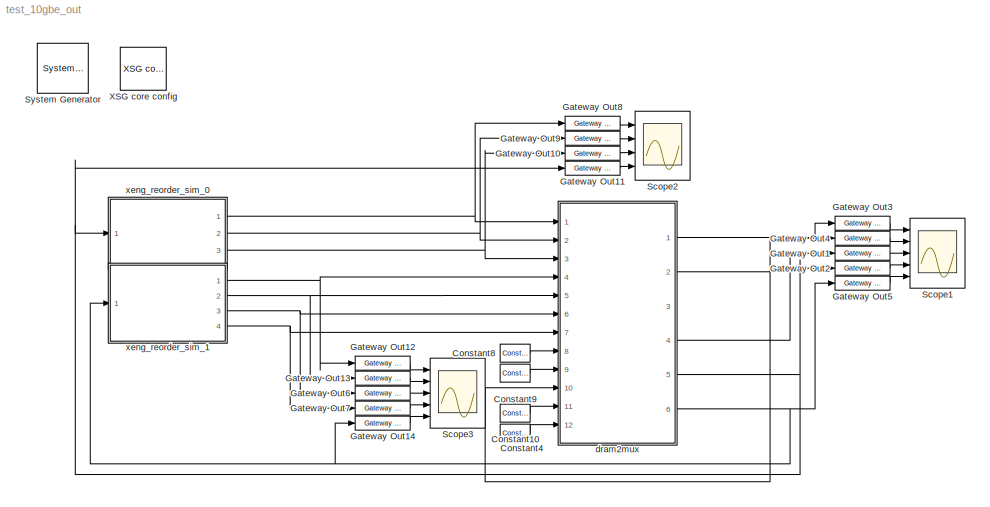
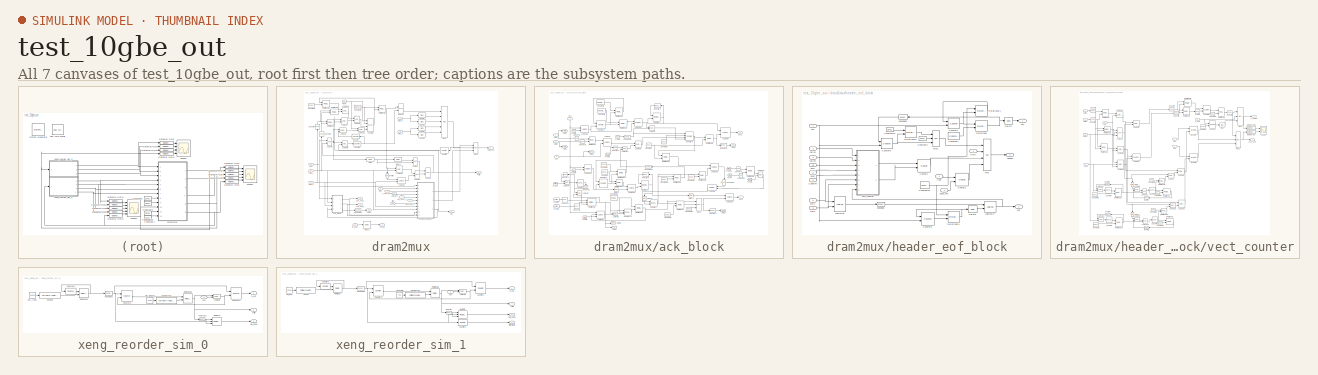
[diagram: thumbnail index - all 7 canvases of the model, root first then tree order]
MODEL test_10gbe_out
KIND model
BLOCK [Reference]  System Generator  REF=xbsIndex_r3/ System Generator
  AttributesFormatString = System\\nGenerator
  Ports = []
  ShowPortLabels = on
  SourceBlock = xbsIndex_r3/ System Generator
  SourceType = Xilinx System Generator
  Tag = genX
  UserData = DataTag0
  UserDataPersistent = on
  core_generation = According to Block Masks
  dbl_ovrd = According to Block Masks
  deprecated_control = off
  directory = ./netlist
  eval_field = 0
  incr_netlist = off
  package = bg575
  part = xc2v1000
  run_coregen = off
  simulink_period = 1
  speed = -4
  synthesis_tool = XST
  sysclk_period = 100
  testbench = off
  trim_vbits = Everywhere in SubSystem
  xilinxfamily = Virtex2
BLOCK [Reference] Constant10  REF=xbsIndex_r3/Constant
  Ports = [0, 1]
  SourceBlock = xbsIndex_r3/Constant
  SourceType = Xilinx Constant Block
  arith_type = Unsigned
  bin_pt = 0
  carry = CIN
  const = 1000
  dbl_ovrd = off
  equ = P=C
  explicit_period = on
  inp1 = P
  inp2 = PCIN>>17
  iostate = 0
  n_bits = 32
  opr = +
  opselect = C
  period = 1
BLOCK [Reference] Constant4  REF=xbsIndex_r3/Constant
  Ports = [0, 1]
  SourceBlock = xbsIndex_r3/Constant
  SourceType = Xilinx Constant Block
  arith_type = Unsigned
  bin_pt = 0
  carry = CIN
  const = 0
  dbl_ovrd = off
  equ = P=C
  explicit_period = on
  inp1 = P
  inp2 = PCIN>>17
  iostate = 0
  n_bits = 32
  opr = +
  opselect = C
  period = 1
BLOCK [Reference] Constant8  REF=xbsIndex_r3/Constant
  Ports = [0, 1]
  SourceBlock = xbsIndex_r3/Constant
  SourceType = Xilinx Constant Block
  arith_type = Unsigned
  bin_pt = 0
  carry = CIN
  const = 8
  dbl_ovrd = off
  equ = P=C
  explicit_period = on
  inp1 = P
  inp2 = PCIN>>17
  iostate = 0
  n_bits = 16
  opr = +
  opselect = C
  period = 1
BLOCK [Reference] Constant9  REF=xbsIndex_r3/Constant
  Ports = [0, 1]
  SourceBlock = xbsIndex_r3/Constant
  SourceType = Xilinx Constant Block
  arith_type = Unsigned
  bin_pt = 0
  carry = CIN
  const = 180
  dbl_ovrd = off
  equ = P=C
  explicit_period = on
  inp1 = P
  inp2 = PCIN>>17
  iostate = 0
  n_bits = 32
  opr = +
  opselect = C
  period = 1
BLOCK [Reference] Gateway Out1  REF=xbsIndex_r3/Gateway Out
  LOCs = {}
  Ports = [1, 1]
  SourceBlock = xbsIndex_r3/Gateway Out
  SourceType = Xilinx Gateway Out
  arith_type = Boolean
  bin_pt = 6
  hdl_port = on
  locs_specified = off
  nbits = 8
  needs_fixed_name = off
  output_type = Double
  overflow = Wrap
  quantization = Truncate
  show_param = off
  timing_constraint = None
  xl_area = [0, 0, 0, 0, 0, 0, 0]
  xl_use_area = off
BLOCK [Reference] Gateway Out10  REF=xbsIndex_r3/Gateway Out
  LOCs = {}
  Ports = [1, 1]
  SourceBlock = xbsIndex_r3/Gateway Out
  SourceType = Xilinx Gateway Out
  arith_type = Boolean
  bin_pt = 6
  hdl_port = on
  locs_specified = off
  nbits = 8
  needs_fixed_name = off
  output_type = Double
  overflow = Wrap
  quantization = Truncate
  show_param = off
  timing_constraint = None
  xl_area = [0, 0, 0, 0, 0, 0, 0]
  xl_use_area = off
BLOCK [Reference] Gateway Out11  REF=xbsIndex_r3/Gateway Out
  LOCs = {}
  Ports = [1, 1]
  SourceBlock = xbsIndex_r3/Gateway Out
  SourceType = Xilinx Gateway Out
  arith_type = Boolean
  bin_pt = 6
  hdl_port = on
  locs_specified = off
  nbits = 8
  needs_fixed_name = off
  output_type = Double
  overflow = Wrap
  quantization = Truncate
  show_param = off
  timing_constraint = None
  xl_area = [0, 0, 0, 0, 0, 0, 0]
  xl_use_area = off
BLOCK [Reference] Gateway Out12  REF=xbsIndex_r3/Gateway Out
  LOCs = {}
  Ports = [1, 1]
  SourceBlock = xbsIndex_r3/Gateway Out
  SourceType = Xilinx Gateway Out
  arith_type = Boolean
  bin_pt = 6
  hdl_port = on
  locs_specified = off
  nbits = 8
  needs_fixed_name = off
  output_type = Double
  overflow = Wrap
  quantization = Truncate
  show_param = off
  timing_constraint = None
  xl_area = [0, 0, 0, 0, 0, 0, 0]
  xl_use_area = off
BLOCK [Reference] Gateway Out13  REF=xbsIndex_r3/Gateway Out
  LOCs = {}
  Ports = [1, 1]
  SourceBlock = xbsIndex_r3/Gateway Out
  SourceType = Xilinx Gateway Out
  arith_type = Boolean
  bin_pt = 6
  hdl_port = on
  locs_specified = off
  nbits = 8
  needs_fixed_name = off
  output_type = Double
  overflow = Wrap
  quantization = Truncate
  show_param = off
  timing_constraint = None
  xl_area = [0, 0, 0, 0, 0, 0, 0]
  xl_use_area = off
BLOCK [Reference] Gateway Out14  REF=xbsIndex_r3/Gateway Out
  LOCs = {}
  Ports = [1, 1]
  SourceBlock = xbsIndex_r3/Gateway Out
  SourceType = Xilinx Gateway Out
  arith_type = Boolean
  bin_pt = 6
  hdl_port = on
  locs_specified = off
  nbits = 8
  needs_fixed_name = off
  output_type = Double
  overflow = Wrap
  quantization = Truncate
  show_param = off
  timing_constraint = None
  xl_area = [0, 0, 0, 0, 0, 0, 0]
  xl_use_area = off
BLOCK [Reference] Gateway Out2  REF=xbsIndex_r3/Gateway Out
  LOCs = {}
  Ports = [1, 1]
  SourceBlock = xbsIndex_r3/Gateway Out
  SourceType = Xilinx Gateway Out
  arith_type = Boolean
  bin_pt = 6
  hdl_port = on
  locs_specified = off
  nbits = 8
  needs_fixed_name = off
  output_type = Double
  overflow = Wrap
  quantization = Truncate
  show_param = off
  timing_constraint = None
  xl_area = [0, 0, 0, 0, 0, 0, 0]
  xl_use_area = off
BLOCK [Reference] Gateway Out3  REF=xbsIndex_r3/Gateway Out
  LOCs = {}
  Ports = [1, 1]
  SourceBlock = xbsIndex_r3/Gateway Out
  SourceType = Xilinx Gateway Out
  arith_type = Boolean
  bin_pt = 6
  hdl_port = on
  locs_specified = off
  nbits = 8
  needs_fixed_name = off
  output_type = Double
  overflow = Wrap
  quantization = Truncate
  show_param = off
  timing_constraint = None
  xl_area = [0, 0, 0, 0, 0, 0, 0]
  xl_use_area = off
BLOCK [Reference] Gateway Out4  REF=xbsIndex_r3/Gateway Out
  LOCs = {}
  Ports = [1, 1]
  SourceBlock = xbsIndex_r3/Gateway Out
  SourceType = Xilinx Gateway Out
  arith_type = Boolean
  bin_pt = 6
  hdl_port = on
  locs_specified = off
  nbits = 8
  needs_fixed_name = off
  output_type = Double
  overflow = Wrap
  quantization = Truncate
  show_param = off
  timing_constraint = None
  xl_area = [0, 0, 0, 0, 0, 0, 0]
  xl_use_area = off
BLOCK [Reference] Gateway Out5  REF=xbsIndex_r3/Gateway Out
  LOCs = {}
  Ports = [1, 1]
  SourceBlock = xbsIndex_r3/Gateway Out
  SourceType = Xilinx Gateway Out
  arith_type = Boolean
  bin_pt = 6
  hdl_port = on
  locs_specified = off
  nbits = 8
  needs_fixed_name = off
  output_type = Double
  overflow = Wrap
  quantization = Truncate
  show_param = off
  timing_constraint = None
  xl_area = [0, 0, 0, 0, 0, 0, 0]
  xl_use_area = off
BLOCK [Reference] Gateway Out6  REF=xbsIndex_r3/Gateway Out
  LOCs = {}
  Ports = [1, 1]
  SourceBlock = xbsIndex_r3/Gateway Out
  SourceType = Xilinx Gateway Out
  arith_type = Boolean
  bin_pt = 6
  hdl_port = on
  locs_specified = off
  nbits = 8
  needs_fixed_name = off
  output_type = Double
  overflow = Wrap
  quantization = Truncate
  show_param = off
  timing_constraint = None
  xl_area = [0, 0, 0, 0, 0, 0, 0]
  xl_use_area = off
BLOCK [Reference] Gateway Out7  REF=xbsIndex_r3/Gateway Out
  LOCs = {}
  Ports = [1, 1]
  SourceBlock = xbsIndex_r3/Gateway Out
  SourceType = Xilinx Gateway Out
  arith_type = Boolean
  bin_pt = 6
  hdl_port = on
  locs_specified = off
  nbits = 8
  needs_fixed_name = off
  output_type = Double
  overflow = Wrap
  quantization = Truncate
  show_param = off
  timing_constraint = None
  xl_area = [0, 0, 0, 0, 0, 0, 0]
  xl_use_area = off
BLOCK [Reference] Gateway Out8  REF=xbsIndex_r3/Gateway Out
  LOCs = {}
  Ports = [1, 1]
  SourceBlock = xbsIndex_r3/Gateway Out
  SourceType = Xilinx Gateway Out
  arith_type = Boolean
  bin_pt = 6
  hdl_port = on
  locs_specified = off
  nbits = 8
  needs_fixed_name = off
  output_type = Double
  overflow = Wrap
  quantization = Truncate
  show_param = off
  timing_constraint = None
  xl_area = [0, 0, 0, 0, 0, 0, 0]
  xl_use_area = off
BLOCK [Reference] Gateway Out9  REF=xbsIndex_r3/Gateway Out
  LOCs = {}
  Ports = [1, 1]
  SourceBlock = xbsIndex_r3/Gateway Out
  SourceType = Xilinx Gateway Out
  arith_type = Boolean
  bin_pt = 6
  hdl_port = on
  locs_specified = off
  nbits = 8
  needs_fixed_name = off
  output_type = Double
  overflow = Wrap
  quantization = Truncate
  show_param = off
  timing_constraint = None
  xl_area = [0, 0, 0, 0, 0, 0, 0]
  xl_use_area = off
BLOCK [Scope] Scope1
  DataFormat = StructureWithTime
  LimitDataPoints = off
  NumInputPorts = 5
  Ports = [5]
  SaveName = ScopeData2
  YMax = 432~1~1~1~1
  YMin = 432~-1~-1~-1~0
  ZoomMode = xonly
BLOCK [Scope] Scope2
  DataFormat = StructureWithTime
  LimitDataPoints = off
  NumInputPorts = 4
  Ports = [4]
  YMax = 1~1.05~1.05~1
  YMin = 0~0.95~0.95~-1
  ZoomMode = yonly
BLOCK [Scope] Scope3
  DataFormat = StructureWithTime
  LimitDataPoints = off
  NumInputPorts = 5
  Ports = [5]
  SaveName = ScopeData1
  YMax = 12200~1~1~1~1
  YMin = 10600~1~-1~-1~0
  ZoomMode = xonly
BLOCK [Reference] XSG core config  REF=xps_library/XSG core config  (lib defined in mdl_00b5cec29cd0, mdl_02ab6ecaa3d1, +5 more)
  Ports = []
  ShowPortLabels = on
  SourceBlock = xps_library/XSG core config
  SourceType = xsg core config
  Tag = xps:xsg
  clk_rate = 205
  clk_src = sys_clk2x
  gpio_clk_bit_index = 0
  gpio_clk_io_group = iBOB:sma
  hw_sys = BEE2_usr
  ibob_linux = off
  mpc_type = powerpc405
  sample_period = 1
  synthesis_tool = XST
BLOCK [SubSystem] dram2mux
  MaskEnableString = on
  MaskIconFrame = on
  MaskIconOpaque = on
  MaskIconRotate = none
  MaskIconUnits = autoscale
  MaskPromptString = Payload length
  MaskStyleString = edit
  MaskToolTipString = on
  MaskTunableValueString = on
  MaskValueString = 180
  MaskVariables = payload_len=@1;
  MaskVisibilityString = on
  MinAlgLoopOccurrences = off
  Ports = [12, 6]
  RTWSystemCode = Auto
  TreatAsAtomicUnit = off
BLOCK [Reference] dram2mux/Concat  REF=xbsIndex_r3/Concat
  Ports = [2, 1]
  SourceBlock = xbsIndex_r3/Concat
  SourceType = Xilinx Bus Concatenator
  dbl_ovrd = off
  explicit_period = off
  num_inputs = 2
  period = 1
BLOCK [Reference] dram2mux/Constant2  REF=xbsIndex_r3/Constant
  Ports = [0, 1]
  SourceBlock = xbsIndex_r3/Constant
  SourceType = Xilinx Constant Block
  arith_type = Unsigned
  bin_pt = 0
  carry = CIN
  const = payload_len/2
  dbl_ovrd = off
  equ = P=C
  explicit_period = on
  inp1 = P
  inp2 = PCIN>>17
  iostate = 0
  n_bits = 16
  opr = +
  opselect = C
  period = 1
BLOCK [Reference] dram2mux/Constant9  REF=xbsIndex_r3/Constant
  Ports = [0, 1]
  SourceBlock = xbsIndex_r3/Constant
  SourceType = Xilinx Constant Block
  arith_type = Unsigned
  bin_pt = 0
  carry = CIN
  const = payload_len
  dbl_ovrd = off
  equ = P=C
  explicit_period = on
  inp1 = P
  inp2 = PCIN>>17
  iostate = 0
  n_bits = 8
  opr = +
  opselect = C
  period = 1
BLOCK [Reference] dram2mux/Convert  REF=xbsIndex_r3/Convert
  Ports = [1, 1]
  SourceBlock = xbsIndex_r3/Convert
  SourceType = Xilinx Converter Block
  arith_type = Boolean
  bin_pt = 6
  dbl_ovrd = off
  explicit_period = off
  inserted_by_tool = off
  latency = 0
  n_bits = 8
  overflow = Wrap
  period = 1
  pipeline = off
  quantization = Truncate
  show_param = off
  xl_area = [0, 0, 0, 0, 0, 0, 0]
  xl_use_area = off
BLOCK [Reference] dram2mux/Convert1  REF=xbsIndex_r3/Convert
  Ports = [1, 1]
  SourceBlock = xbsIndex_r3/Convert
  SourceType = Xilinx Converter Block
  arith_type = Unsigned
  bin_pt = 0
  dbl_ovrd = off
  explicit_period = off
  inserted_by_tool = off
  latency = 0
  n_bits = 1
  overflow = Wrap
  period = 1
  pipeline = off
  quantization = Truncate
  show_param = off
  xl_area = [0, 0, 0, 0, 0, 0, 0]
  xl_use_area = off
BLOCK [Reference] dram2mux/Convert2  REF=xbsIndex_r3/Convert
  Ports = [1, 1]
  SourceBlock = xbsIndex_r3/Convert
  SourceType = Xilinx Converter Block
  arith_type = Unsigned
  bin_pt = 0
  dbl_ovrd = off
  explicit_period = off
  inserted_by_tool = off
  latency = 0
  n_bits = 1
  overflow = Wrap
  period = 1
  pipeline = off
  quantization = Truncate
  show_param = off
  xl_area = [0, 0, 0, 0, 0, 0, 0]
  xl_use_area = off
BLOCK [Reference] dram2mux/Counter1  REF=xbsIndex_r3/Counter
  Ports = [4, 1]
  SourceBlock = xbsIndex_r3/Counter
  SourceType = Xilinx Counter Block
  arith_type = Unsigned
  bin_pt = 0
  cnt_by_val = 1
  cnt_to = 180
  cnt_type = Free Running
  dbl_ovrd = off
  en = on
  explicit_period = on
  gen_core = off
  load_pin = on
  n_bits = 16
  operation = Up
  period = 1
  rst = on
  show_param = off
  start_count = 0
  use_rpm = on
  xl_area = [0, 0, 0, 0, 0, 0, 0]
  xl_use_area = off
BLOCK [Reference] dram2mux/Counter3  REF=xbsIndex_r3/Counter
  Ports = [1, 1]
  SourceBlock = xbsIndex_r3/Counter
  SourceType = Xilinx Counter Block
  arith_type = Unsigned
  bin_pt = 0
  cnt_by_val = 1
  cnt_to = Inf
  cnt_type = Free Running
  dbl_ovrd = off
  en = on
  explicit_period = on
  gen_core = off
  load_pin = off
  n_bits = 1
  operation = Up
  period = 1
  rst = off
  show_param = off
  start_count = 0
  use_rpm = on
  xl_area = [0, 0, 0, 0, 0, 0, 0]
  xl_use_area = off
BLOCK [Reference] dram2mux/Delay  REF=xbsIndex_r3/Delay
  Ports = [1, 1]
  SourceBlock = xbsIndex_r3/Delay
  SourceType = Xilinx Delay Block
  accept_only_valid = off
  dbl_ovrd = off
  en = off
  explicit_period = on
  init_zero = on
  latency = 1
  period = 1
  reg_retiming = off
  show_param = off
  xl_area = [0, 0, 0, 0, 0, 0, 0]
  xl_use_area = off
BLOCK [Reference] dram2mux/Delay1  REF=xbsIndex_r3/Delay
  Ports = [1, 1]
  SourceBlock = xbsIndex_r3/Delay
  SourceType = Xilinx Delay Block
  accept_only_valid = off
  dbl_ovrd = off
  en = off
  explicit_period = on
  init_zero = on
  latency = 1
  period = 1
  reg_retiming = off
  show_param = off
  xl_area = [0, 0, 0, 0, 0, 0, 0]
  xl_use_area = off
BLOCK [Reference] dram2mux/Delay2  REF=xbsIndex_r3/Delay
  Ports = [1, 1]
  SourceBlock = xbsIndex_r3/Delay
  SourceType = Xilinx Delay Block
  accept_only_valid = off
  dbl_ovrd = off
  en = off
  explicit_period = off
  init_zero = on
  latency = 2
  period = 1
  reg_retiming = off
  show_param = off
  xl_area = [0, 0, 0, 0, 0, 0, 0]
  xl_use_area = off
BLOCK [From] dram2mux/From4
  CloseFcn = tagdialog Close
  GotoTag = ok
BLOCK [Goto] dram2mux/Goto1
  GotoTag = ok
  TagVisibility = local
BLOCK [Reference] dram2mux/Inverter  REF=xbsIndex_r3/Inverter
  Ports = [1, 1]
  SourceBlock = xbsIndex_r3/Inverter
  SourceType = Xilinx Inverter
  dbl_ovrd = off
  en = off
  explicit_period = off
  latency = 0
  period = 1
  show_param = off
  xl_area = [0, 0, 0, 0, 0, 0, 0]
  xl_use_area = off
BLOCK [Reference] dram2mux/Inverter1  REF=xbsIndex_r3/Inverter
  Ports = [1, 1]
  SourceBlock = xbsIndex_r3/Inverter
  SourceType = Xilinx Inverter
  dbl_ovrd = off
  en = off
  explicit_period = off
  latency = 0
  period = 1
  show_param = off
  xl_area = [0, 0, 0, 0, 0, 0, 0]
  xl_use_area = off
BLOCK [Reference] dram2mux/Logical  REF=xbsIndex_r3/Logical
  Ports = [2, 1]
  SourceBlock = xbsIndex_r3/Logical
  SourceType = Xilinx Logical Block
  align_bp = on
  arith_type = Unsigned
  bin_pt = 2
  dbl_ovrd = off
  en = off
  explicit_period = off
  inputs = 2
  latency = 0
  logical_function = NOR
  n_bits = 8
  period = 1
  precision = Full
  show_param = off
  xl_area = [0, 0, 0, 0, 0, 0, 0]
  xl_use_area = off
BLOCK [Reference] dram2mux/Logical1  REF=xbsIndex_r3/Logical
  Ports = [2, 1]
  SourceBlock = xbsIndex_r3/Logical
  SourceType = Xilinx Logical Block
  align_bp = off
  arith_type = Unsigned
  bin_pt = 2
  dbl_ovrd = off
  en = off
  explicit_period = off
  inputs = 2
  latency = 0
  logical_function = AND
  n_bits = 8
  period = 1
  precision = Full
  show_param = off
  xl_area = [0, 0, 0, 0, 0, 0, 0]
  xl_use_area = off
BLOCK [Reference] dram2mux/Logical10  REF=xbsIndex_r3/Logical
  Ports = [2, 1]
  SourceBlock = xbsIndex_r3/Logical
  SourceType = Xilinx Logical Block
  align_bp = off
  arith_type = Unsigned
  bin_pt = 2
  dbl_ovrd = off
  en = off
  explicit_period = off
  inputs = 2
  latency = 0
  logical_function = AND
  n_bits = 8
  period = 1
  precision = Full
  show_param = off
  xl_area = [0, 0, 0, 0, 0, 0, 0]
  xl_use_area = off
BLOCK [Reference] dram2mux/Logical11  REF=xbsIndex_r3/Logical
  Ports = [2, 1]
  SourceBlock = xbsIndex_r3/Logical
  SourceType = Xilinx Logical Block
  align_bp = off
  arith_type = Unsigned
  bin_pt = 2
  dbl_ovrd = off
  en = off
  explicit_period = off
  inputs = 2
  latency = 0
  logical_function = OR
  n_bits = 8
  period = 1
  precision = Full
  show_param = off
  xl_area = [0, 0, 0, 0, 0, 0, 0]
  xl_use_area = off
BLOCK [Reference] dram2mux/Logical2  REF=xbsIndex_r3/Logical
  Ports = [2, 1]
  SourceBlock = xbsIndex_r3/Logical
  SourceType = Xilinx Logical Block
  align_bp = off
  arith_type = Unsigned
  bin_pt = 2
  dbl_ovrd = off
  en = off
  explicit_period = off
  inputs = 2
  latency = 0
  logical_function = AND
  n_bits = 8
  period = 1
  precision = Full
  show_param = off
  xl_area = [0, 0, 0, 0, 0, 0, 0]
  xl_use_area = off
BLOCK [Reference] dram2mux/Logical3  REF=xbsIndex_r3/Logical
  Ports = [2, 1]
  SourceBlock = xbsIndex_r3/Logical
  SourceType = Xilinx Logical Block
  align_bp = off
  arith_type = Unsigned
  bin_pt = 2
  dbl_ovrd = off
  en = off
  explicit_period = off
  inputs = 2
  latency = 0
  logical_function = AND
  n_bits = 8
  period = 1
  precision = Full
  show_param = off
  xl_area = [0, 0, 0, 0, 0, 0, 0]
  xl_use_area = off
BLOCK [Reference] dram2mux/Logical4  REF=xbsIndex_r3/Logical
  Ports = [2, 1]
  SourceBlock = xbsIndex_r3/Logical
  SourceType = Xilinx Logical Block
  align_bp = on
  arith_type = Unsigned
  bin_pt = 2
  dbl_ovrd = off
  en = off
  explicit_period = off
  inputs = 2
  latency = 2
  logical_function = OR
  n_bits = 8
  period = 1
  precision = Full
  show_param = off
  xl_area = [0, 0, 0, 0, 0, 0, 0]
  xl_use_area = off
BLOCK [Reference] dram2mux/Logical5  REF=xbsIndex_r3/Logical
  Ports = [2, 1]
  SourceBlock = xbsIndex_r3/Logical
  SourceType = Xilinx Logical Block
  align_bp = off
  arith_type = Unsigned
  bin_pt = 2
  dbl_ovrd = off
  en = off
  explicit_period = off
  inputs = 2
  latency = 0
  logical_function = AND
  n_bits = 8
  period = 1
  precision = Full
  show_param = off
  xl_area = [0, 0, 0, 0, 0, 0, 0]
  xl_use_area = off
BLOCK [Reference] dram2mux/Logical6  REF=xbsIndex_r3/Logical
  Ports = [2, 1]
  SourceBlock = xbsIndex_r3/Logical
  SourceType = Xilinx Logical Block
  align_bp = off
  arith_type = Unsigned
  bin_pt = 2
  dbl_ovrd = off
  en = off
  explicit_period = off
  inputs = 2
  latency = 0
  logical_function = AND
  n_bits = 8
  period = 1
  precision = Full
  show_param = off
  xl_area = [0, 0, 0, 0, 0, 0, 0]
  xl_use_area = off
BLOCK [Reference] dram2mux/Logical7  REF=xbsIndex_r3/Logical
  Ports = [2, 1]
  SourceBlock = xbsIndex_r3/Logical
  SourceType = Xilinx Logical Block
  align_bp = off
  arith_type = Unsigned
  bin_pt = 2
  dbl_ovrd = off
  en = off
  explicit_period = off
  inputs = 2
  latency = 0
  logical_function = AND
  n_bits = 8
  period = 1
  precision = Full
  show_param = off
  xl_area = [0, 0, 0, 0, 0, 0, 0]
  xl_use_area = off
BLOCK [Reference] dram2mux/Logical8  REF=xbsIndex_r3/Logical
  Ports = [2, 1]
  SourceBlock = xbsIndex_r3/Logical
  SourceType = Xilinx Logical Block
  align_bp = off
  arith_type = Unsigned
  bin_pt = 2
  dbl_ovrd = off
  en = off
  explicit_period = off
  inputs = 2
  latency = 0
  logical_function = OR
  n_bits = 8
  period = 1
  precision = Full
  show_param = off
  xl_area = [0, 0, 0, 0, 0, 0, 0]
  xl_use_area = off
BLOCK [Reference] dram2mux/Logical9  REF=xbsIndex_r3/Logical
  Ports = [2, 1]
  SourceBlock = xbsIndex_r3/Logical
  SourceType = Xilinx Logical Block
  align_bp = on
  arith_type = Unsigned
  bin_pt = 2
  dbl_ovrd = off
  en = off
  explicit_period = off
  inputs = 2
  latency = 0
  logical_function = AND
  n_bits = 8
  period = 1
  precision = Full
  show_param = off
  xl_area = [0, 0, 0, 0, 0, 0, 0]
  xl_use_area = off
BLOCK [Reference] dram2mux/Mux3  REF=xbsIndex_r3/Mux
  Ports = [3, 1]
  SourceBlock = xbsIndex_r3/Mux
  SourceType = Xilinx Multiplexer Block
  arith_type = Signed  (2's comp)
  bin_pt = 2
  dbl_ovrd = off
  en = off
  explicit_period = off
  gen_core = off
  inputs = 2
  latency = 0
  mux_type = off
  n_bits = 8
  overflow = Wrap
  period = 1
  precision = Full
  quantization = Truncate
  show_param = off
  use_rpm = off
  xl_area = [0, 0, 0, 0, 0, 0, 0]
  xl_use_area = off
BLOCK [Reference] dram2mux/Mux5  REF=xbsIndex_r3/Mux
  Ports = [5, 1]
  SourceBlock = xbsIndex_r3/Mux
  SourceType = Xilinx Multiplexer Block
  arith_type = Signed  (2's comp)
  bin_pt = 2
  dbl_ovrd = off
  en = off
  explicit_period = on
  gen_core = off
  inputs = 4
  latency = 2
  mux_type = off
  n_bits = 8
  overflow = Wrap
  period = 1
  precision = Full
  quantization = Truncate
  show_param = off
  use_rpm = off
  xl_area = [0, 0, 0, 0, 0, 0, 0]
  xl_use_area = off
BLOCK [Inport] dram2mux/RB_done_0
  IconDisplay = Port number
  LatchInput = off
  Port = 3
BLOCK [Inport] dram2mux/RB_done_1
  IconDisplay = Port number
  LatchInput = off
  Port = 6
BLOCK [Reference] dram2mux/Relational1  REF=xbsIndex_r3/Relational
  Ports = [2, 1]
  SourceBlock = xbsIndex_r3/Relational
  SourceType = Xilinx Relational Block
  dbl_ovrd = off
  en = off
  explicit_period = off
  latency = 0
  mode = a>b
  period = 1
  show_param = off
  xl_area = [0, 0, 0, 0, 0, 0, 0]
  xl_use_area = off
BLOCK [Reference] dram2mux/Relational15  REF=xbsIndex_r3/Relational
  Ports = [2, 1]
  SourceBlock = xbsIndex_r3/Relational
  SourceType = Xilinx Relational Block
  dbl_ovrd = off
  en = off
  explicit_period = off
  latency = 1
  mode = a=b
  period = 1
  show_param = off
  xl_area = [0, 0, 0, 0, 0, 0, 0]
  xl_use_area = off
BLOCK [Reference] dram2mux/Relational2  REF=xbsIndex_r3/Relational
  Ports = [2, 1]
  SourceBlock = xbsIndex_r3/Relational
  SourceType = Xilinx Relational Block
  dbl_ovrd = off
  en = off
  explicit_period = off
  latency = 0
  mode = a<=b
  period = 1
  show_param = off
  xl_area = [0, 0, 0, 0, 0, 0, 0]
  xl_use_area = off
BLOCK [Reference] dram2mux/Relational3  REF=xbsIndex_r3/Relational
  Ports = [2, 1]
  SourceBlock = xbsIndex_r3/Relational
  SourceType = Xilinx Relational Block
  dbl_ovrd = off
  en = off
  explicit_period = off
  latency = 0
  mode = a>b
  period = 1
  show_param = off
  xl_area = [0, 0, 0, 0, 0, 0, 0]
  xl_use_area = off
BLOCK [Inport] dram2mux/ack
  IconDisplay = Port number
  LatchInput = off
  Port = 10
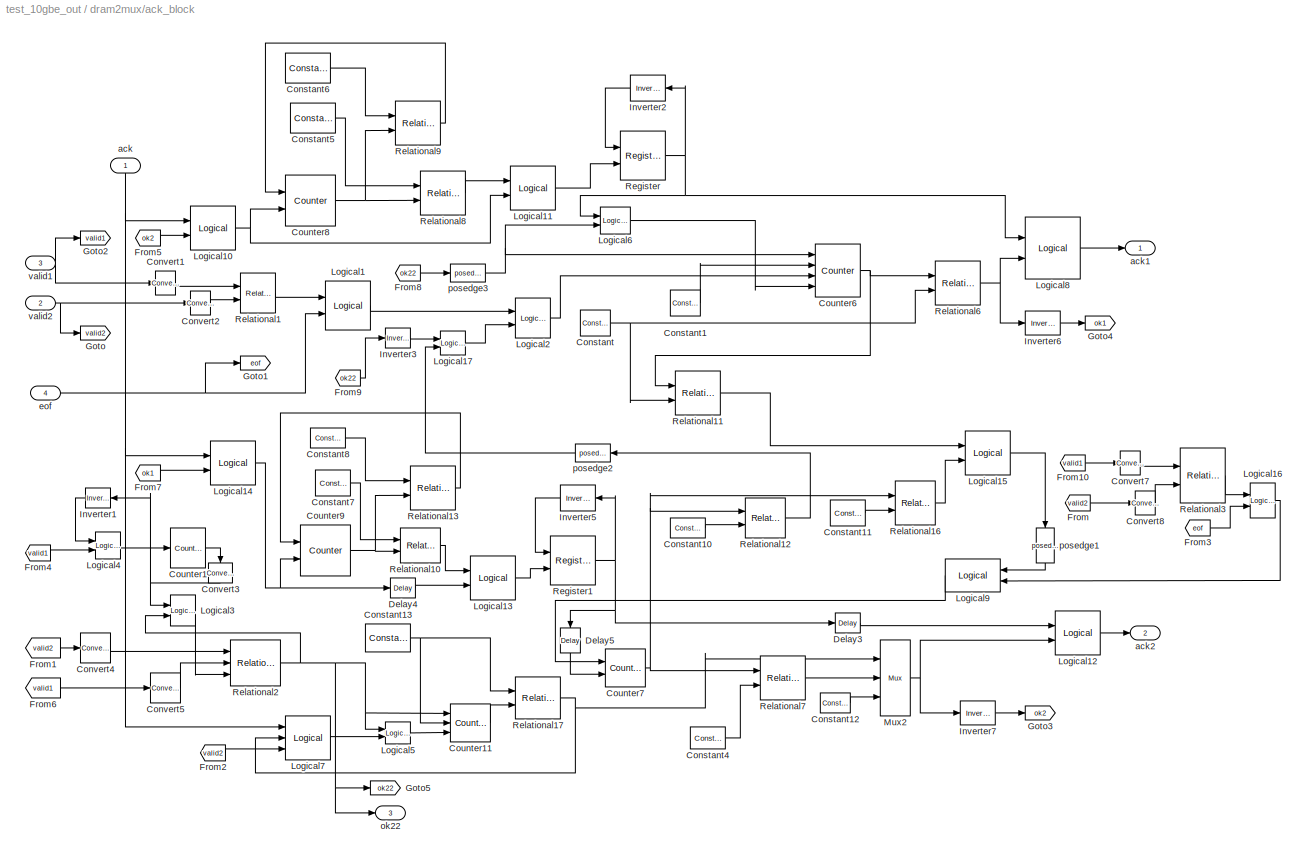
BLOCK [SubSystem] dram2mux/ack_block
  MinAlgLoopOccurrences = off
  Ports = [4, 3]
  RTWSystemCode = Auto
  TreatAsAtomicUnit = off
BLOCK [Reference] dram2mux/ack_block/Constant  REF=xbsIndex_r3/Constant
  Ports = [0, 1]
  SourceBlock = xbsIndex_r3/Constant
  SourceType = Xilinx Constant Block
  arith_type = Unsigned
  bin_pt = 0
  carry = CIN
  const = payload_len*3/2 -1
  dbl_ovrd = off
  equ = P=C
  explicit_period = on
  inp1 = P
  inp2 = PCIN>>17
  iostate = 0
  n_bits = 10
  opr = +
  opselect = C
  period = 1
BLOCK [Reference] dram2mux/ack_block/Constant1  REF=xbsIndex_r3/Constant
  Ports = [0, 1]
  SourceBlock = xbsIndex_r3/Constant
  SourceType = Xilinx Constant Block
  arith_type = Unsigned
  bin_pt = 0
  carry = CIN
  const = payload_len*3/2
  dbl_ovrd = off
  equ = P=C
  explicit_period = on
  inp1 = P
  inp2 = PCIN>>17
  iostate = 0
  n_bits = 10
  opr = +
  opselect = C
  period = 1
BLOCK [Reference] dram2mux/ack_block/Constant10  REF=xbsIndex_r3/Constant
  Ports = [0, 1]
  SourceBlock = xbsIndex_r3/Constant
  SourceType = Xilinx Constant Block
  arith_type = Unsigned
  bin_pt = 0
  carry = CIN
  const = payload_len*3/2 -1
  dbl_ovrd = off
  equ = P=C
  explicit_period = on
  inp1 = P
  inp2 = PCIN>>17
  iostate = 0
  n_bits = 9
  opr = +
  opselect = C
  period = 1
BLOCK [Reference] dram2mux/ack_block/Constant11  REF=xbsIndex_r3/Constant
  Ports = [0, 1]
  SourceBlock = xbsIndex_r3/Constant
  SourceType = Xilinx Constant Block
  arith_type = Unsigned
  bin_pt = 0
  carry = CIN
  const = payload_len*3/2+1
  dbl_ovrd = off
  equ = P=C
  explicit_period = on
  inp1 = P
  inp2 = PCIN>>17
  iostate = 0
  n_bits = 9
  opr = +
  opselect = C
  period = 1
BLOCK [Reference] dram2mux/ack_block/Constant12  REF=xbsIndex_r3/Constant
  Ports = [0, 1]
  SourceBlock = xbsIndex_r3/Constant
  SourceType = Xilinx Constant Block
  arith_type = Boolean
  bin_pt = 0
  carry = CIN
  const = 0
  dbl_ovrd = off
  equ = P=C
  explicit_period = on
  inp1 = P
  inp2 = PCIN>>17
  iostate = 0
  n_bits = 1
  opr = +
  opselect = C
  period = 1
BLOCK [Reference] dram2mux/ack_block/Constant13  REF=xbsIndex_r3/Constant
  Ports = [0, 1]
  SourceBlock = xbsIndex_r3/Constant
  SourceType = Xilinx Constant Block
  arith_type = Unsigned
  bin_pt = 0
  carry = CIN
  const = payload_len+3
  dbl_ovrd = off
  equ = P=C
  explicit_period = on
  inp1 = P
  inp2 = PCIN>>17
  iostate = 0
  n_bits = 10
  opr = +
  opselect = C
  period = 1
BLOCK [Reference] dram2mux/ack_block/Constant4  REF=xbsIndex_r3/Constant
  Ports = [0, 1]
  SourceBlock = xbsIndex_r3/Constant
  SourceType = Xilinx Constant Block
  arith_type = Unsigned
  bin_pt = 0
  carry = CIN
  const = payload_len*3/2-1
  dbl_ovrd = off
  equ = P=C
  explicit_period = on
  inp1 = P
  inp2 = PCIN>>17
  iostate = 0
  n_bits = 9
  opr = +
  opselect = C
  period = 1
BLOCK [Reference] dram2mux/ack_block/Constant5  REF=xbsIndex_r3/Constant
  Ports = [0, 1]
  SourceBlock = xbsIndex_r3/Constant
  SourceType = Xilinx Constant Block
  arith_type = Unsigned
  bin_pt = 0
  carry = CIN
  const = 3
  dbl_ovrd = off
  equ = P=C
  explicit_period = on
  inp1 = P
  inp2 = PCIN>>17
  iostate = 0
  n_bits = 2
  opr = +
  opselect = C
  period = 1
BLOCK [Reference] dram2mux/ack_block/Constant6  REF=xbsIndex_r3/Constant
  Ports = [0, 1]
  SourceBlock = xbsIndex_r3/Constant
  SourceType = Xilinx Constant Block
  arith_type = Unsigned
  bin_pt = 0
  carry = CIN
  const = payload_len+3
  dbl_ovrd = off
  equ = P=C
  explicit_period = on
  inp1 = P
  inp2 = PCIN>>17
  iostate = 0
  n_bits = 8
  opr = +
  opselect = C
  period = 1
BLOCK [Reference] dram2mux/ack_block/Constant7  REF=xbsIndex_r3/Constant
  Ports = [0, 1]
  SourceBlock = xbsIndex_r3/Constant
  SourceType = Xilinx Constant Block
  arith_type = Unsigned
  bin_pt = 0
  carry = CIN
  const = 3
  dbl_ovrd = off
  equ = P=C
  explicit_period = on
  inp1 = P
  inp2 = PCIN>>17
  iostate = 0
  n_bits = 2
  opr = +
  opselect = C
  period = 1
BLOCK [Reference] dram2mux/ack_block/Constant8  REF=xbsIndex_r3/Constant
  Ports = [0, 1]
  SourceBlock = xbsIndex_r3/Constant
  SourceType = Xilinx Constant Block
  arith_type = Unsigned
  bin_pt = 0
  carry = CIN
  const = payload_len+3
  dbl_ovrd = off
  equ = P=C
  explicit_period = on
  inp1 = P
  inp2 = PCIN>>17
  iostate = 0
  n_bits = 8
  opr = +
  opselect = C
  period = 1
BLOCK [Reference] dram2mux/ack_block/Convert1  REF=xbsIndex_r3/Convert
  Ports = [1, 1]
  SourceBlock = xbsIndex_r3/Convert
  SourceType = Xilinx Converter Block
  arith_type = Unsigned
  bin_pt = 0
  dbl_ovrd = off
  explicit_period = off
  inserted_by_tool = off
  latency = 0
  n_bits = 1
  overflow = Wrap
  period = 1
  pipeline = off
  quantization = Truncate
  show_param = off
  xl_area = [0, 0, 0, 0, 0, 0, 0]
  xl_use_area = off
BLOCK [Reference] dram2mux/ack_block/Convert2  REF=xbsIndex_r3/Convert
  Ports = [1, 1]
  SourceBlock = xbsIndex_r3/Convert
  SourceType = Xilinx Converter Block
  arith_type = Unsigned
  bin_pt = 0
  dbl_ovrd = off
  explicit_period = off
  inserted_by_tool = off
  latency = 0
  n_bits = 1
  overflow = Wrap
  period = 1
  pipeline = off
  quantization = Truncate
  show_param = off
  xl_area = [0, 0, 0, 0, 0, 0, 0]
  xl_use_area = off
BLOCK [Reference] dram2mux/ack_block/Convert3  REF=xbsIndex_r3/Convert
  Ports = [1, 1]
  SourceBlock = xbsIndex_r3/Convert
  SourceType = Xilinx Converter Block
  arith_type = Boolean
  bin_pt = 0
  dbl_ovrd = off
  explicit_period = off
  inserted_by_tool = off
  latency = 0
  n_bits = 1
  overflow = Wrap
  period = 1
  pipeline = off
  quantization = Truncate
  show_param = off
  xl_area = [0, 0, 0, 0, 0, 0, 0]
  xl_use_area = off
BLOCK [Reference] dram2mux/ack_block/Convert4  REF=xbsIndex_r3/Convert
  Ports = [1, 1]
  SourceBlock = xbsIndex_r3/Convert
  SourceType = Xilinx Converter Block
  arith_type = Unsigned
  bin_pt = 0
  dbl_ovrd = off
  explicit_period = off
  inserted_by_tool = off
  latency = 0
  n_bits = 1
  overflow = Wrap
  period = 1
  pipeline = off
  quantization = Truncate
  show_param = off
  xl_area = [0, 0, 0, 0, 0, 0, 0]
  xl_use_area = off
BLOCK [Reference] dram2mux/ack_block/Convert5  REF=xbsIndex_r3/Convert
  Ports = [1, 1]
  SourceBlock = xbsIndex_r3/Convert
  SourceType = Xilinx Converter Block
  arith_type = Unsigned
  bin_pt = 0
  dbl_ovrd = off
  explicit_period = off
  inserted_by_tool = off
  latency = 0
  n_bits = 1
  overflow = Wrap
  period = 1
  pipeline = off
  quantization = Truncate
  show_param = off
  xl_area = [0, 0, 0, 0, 0, 0, 0]
  xl_use_area = off
BLOCK [Reference] dram2mux/ack_block/Convert7  REF=xbsIndex_r3/Convert
  Ports = [1, 1]
  SourceBlock = xbsIndex_r3/Convert
  SourceType = Xilinx Converter Block
  arith_type = Unsigned
  bin_pt = 0
  dbl_ovrd = off
  explicit_period = off
  inserted_by_tool = off
  latency = 0
  n_bits = 1
  overflow = Wrap
  period = 1
  pipeline = off
  quantization = Truncate
  show_param = off
  xl_area = [0, 0, 0, 0, 0, 0, 0]
  xl_use_area = off
BLOCK [Reference] dram2mux/ack_block/Convert8  REF=xbsIndex_r3/Convert
  Ports = [1, 1]
  SourceBlock = xbsIndex_r3/Convert
  SourceType = Xilinx Converter Block
  arith_type = Unsigned
  bin_pt = 0
  dbl_ovrd = off
  explicit_period = off
  inserted_by_tool = off
  latency = 0
  n_bits = 1
  overflow = Wrap
  period = 1
  pipeline = off
  quantization = Truncate
  show_param = off
  xl_area = [0, 0, 0, 0, 0, 0, 0]
  xl_use_area = off
BLOCK [Reference] dram2mux/ack_block/Counter1  REF=xbsIndex_r3/Counter
  Ports = [1, 1]
  SourceBlock = xbsIndex_r3/Counter
  SourceType = Xilinx Counter Block
  arith_type = Unsigned
  bin_pt = 0
  cnt_by_val = 1
  cnt_to = 1
  cnt_type = Count Limited
  dbl_ovrd = off
  en = on
  explicit_period = on
  gen_core = off
  load_pin = off
  n_bits = 1
  operation = Up
  period = 1
  rst = off
  show_param = off
  start_count = 0
  use_rpm = on
  xl_area = [0, 0, 0, 0, 0, 0, 0]
  xl_use_area = off
BLOCK [Reference] dram2mux/ack_block/Counter11  REF=xbsIndex_r3/Counter
  Ports = [3, 1]
  SourceBlock = xbsIndex_r3/Counter
  SourceType = Xilinx Counter Block
  arith_type = Unsigned
  bin_pt = 0
  cnt_by_val = 1
  cnt_to = Inf
  cnt_type = Free Running
  dbl_ovrd = off
  en = on
  explicit_period = on
  gen_core = off
  load_pin = on
  n_bits = 10
  operation = Up
  period = 1
  rst = off
  show_param = off
  start_count = 0
  use_rpm = on
  xl_area = [0, 0, 0, 0, 0, 0, 0]
  xl_use_area = off
BLOCK [Reference] dram2mux/ack_block/Counter6  REF=xbsIndex_r3/Counter
  Ports = [4, 1]
  SourceBlock = xbsIndex_r3/Counter
  SourceType = Xilinx Counter Block
  arith_type = Unsigned
  bin_pt = 0
  cnt_by_val = 1
  cnt_to = Inf
  cnt_type = Free Running
  dbl_ovrd = off
  en = on
  explicit_period = on
  gen_core = off
  load_pin = on
  n_bits = 10
  operation = Up
  period = 1
  rst = on
  show_param = off
  start_count = 0
  use_rpm = on
  xl_area = [0, 0, 0, 0, 0, 0, 0]
  xl_use_area = off
BLOCK [Reference] dram2mux/ack_block/Counter7  REF=xbsIndex_r3/Counter
  Ports = [2, 1]
  SourceBlock = xbsIndex_r3/Counter
  SourceType = Xilinx Counter Block
  arith_type = Unsigned
  bin_pt = 0
  cnt_by_val = 1
  cnt_to = Inf
  cnt_type = Free Running
  dbl_ovrd = off
  en = on
  explicit_period = on
  gen_core = off
  load_pin = off
  n_bits = 10
  operation = Up
  period = 1
  rst = on
  show_param = off
  start_count = 0
  use_rpm = on
  xl_area = [0, 0, 0, 0, 0, 0, 0]
  xl_use_area = off
BLOCK [Reference] dram2mux/ack_block/Counter8  REF=xbsIndex_r3/Counter
  Ports = [2, 1]
  SourceBlock = xbsIndex_r3/Counter
  SourceType = Xilinx Counter Block
  arith_type = Unsigned
  bin_pt = 0
  cnt_by_val = 1
  cnt_to = Inf
  cnt_type = Free Running
  dbl_ovrd = off
  en = on
  explicit_period = on
  gen_core = off
  load_pin = off
  n_bits = 8
  operation = Up
  period = 1
  rst = on
  show_param = off
  start_count = 0
  use_rpm = on
  xl_area = [0, 0, 0, 0, 0, 0, 0]
  xl_use_area = off
BLOCK [Reference] dram2mux/ack_block/Counter9  REF=xbsIndex_r3/Counter
  Ports = [2, 1]
  SourceBlock = xbsIndex_r3/Counter
  SourceType = Xilinx Counter Block
  arith_type = Unsigned
  bin_pt = 0
  cnt_by_val = 1
  cnt_to = Inf
  cnt_type = Free Running
  dbl_ovrd = off
  en = on
  explicit_period = on
  gen_core = off
  load_pin = off
  n_bits = 8
  operation = Up
  period = 1
  rst = on
  show_param = off
  start_count = 0
  use_rpm = on
  xl_area = [0, 0, 0, 0, 0, 0, 0]
  xl_use_area = off
BLOCK [Reference] dram2mux/ack_block/Delay3  REF=xbsIndex_r3/Delay
  Ports = [1, 1]
  SourceBlock = xbsIndex_r3/Delay
  SourceType = Xilinx Delay Block
  accept_only_valid = off
  dbl_ovrd = off
  en = off
  explicit_period = on
  init_zero = on
  latency = 1
  period = 1
  reg_retiming = off
  show_param = off
  xl_area = [0, 0, 0, 0, 0, 0, 0]
  xl_use_area = off
BLOCK [Reference] dram2mux/ack_block/Delay4  REF=xbsIndex_r3/Delay
  Ports = [1, 1]
  SourceBlock = xbsIndex_r3/Delay
  SourceType = Xilinx Delay Block
  accept_only_valid = off
  dbl_ovrd = off
  en = off
  explicit_period = on
  init_zero = on
  latency = 2
  period = 1
  reg_retiming = off
  show_param = off
  xl_area = [0, 0, 0, 0, 0, 0, 0]
  xl_use_area = off
BLOCK [Reference] dram2mux/ack_block/Delay5  REF=xbsIndex_r3/Delay
  Ports = [1, 1]
  SourceBlock = xbsIndex_r3/Delay
  SourceType = Xilinx Delay Block
  accept_only_valid = off
  dbl_ovrd = off
  en = off
  explicit_period = on
  init_zero = on
  latency = 1
  period = 1
  reg_retiming = off
  show_param = off
  xl_area = [0, 0, 0, 0, 0, 0, 0]
  xl_use_area = off
BLOCK [From] dram2mux/ack_block/From
  CloseFcn = tagdialog Close
  GotoTag = valid2
BLOCK [From] dram2mux/ack_block/From1
  CloseFcn = tagdialog Close
  GotoTag = valid2
BLOCK [From] dram2mux/ack_block/From10
  CloseFcn = tagdialog Close
  GotoTag = valid1
BLOCK [From] dram2mux/ack_block/From2
  CloseFcn = tagdialog Close
  GotoTag = valid2
BLOCK [From] dram2mux/ack_block/From3
  CloseFcn = tagdialog Close
  GotoTag = eof
BLOCK [From] dram2mux/ack_block/From4
  CloseFcn = tagdialog Close
  GotoTag = valid1
BLOCK [From] dram2mux/ack_block/From5
  CloseFcn = tagdialog Close
  GotoTag = ok2
BLOCK [From] dram2mux/ack_block/From6
  CloseFcn = tagdialog Close
  GotoTag = valid1
BLOCK [From] dram2mux/ack_block/From7
  CloseFcn = tagdialog Close
  GotoTag = ok1
BLOCK [From] dram2mux/ack_block/From8
  CloseFcn = tagdialog Close
  GotoTag = ok22
BLOCK [From] dram2mux/ack_block/From9
  CloseFcn = tagdialog Close
  GotoTag = ok22
BLOCK [Goto] dram2mux/ack_block/Goto
  GotoTag = valid2
  TagVisibility = local
BLOCK [Goto] dram2mux/ack_block/Goto1
  GotoTag = eof
  TagVisibility = local
BLOCK [Goto] dram2mux/ack_block/Goto2
  GotoTag = valid1
  TagVisibility = local
BLOCK [Goto] dram2mux/ack_block/Goto3
  GotoTag = ok2
  TagVisibility = local
BLOCK [Goto] dram2mux/ack_block/Goto4
  GotoTag = ok1
  TagVisibility = local
BLOCK [Goto] dram2mux/ack_block/Goto5
  GotoTag = ok22
  TagVisibility = local
BLOCK [Reference] dram2mux/ack_block/Inverter1  REF=xbsIndex_r3/Inverter
  Ports = [1, 1]
  SourceBlock = xbsIndex_r3/Inverter
  SourceType = Xilinx Inverter
  dbl_ovrd = off
  en = off
  explicit_period = off
  latency = 0
  period = 1
  show_param = off
  xl_area = [0, 0, 0, 0, 0, 0, 0]
  xl_use_area = off
BLOCK [Reference] dram2mux/ack_block/Inverter2  REF=xbsIndex_r3/Inverter
  Ports = [1, 1]
  SourceBlock = xbsIndex_r3/Inverter
  SourceType = Xilinx Inverter
  dbl_ovrd = off
  en = off
  explicit_period = off
  latency = 0
  period = 1
  show_param = off
  xl_area = [0, 0, 0, 0, 0, 0, 0]
  xl_use_area = off
BLOCK [Reference] dram2mux/ack_block/Inverter3  REF=xbsIndex_r3/Inverter
  Ports = [1, 1]
  SourceBlock = xbsIndex_r3/Inverter
  SourceType = Xilinx Inverter
  dbl_ovrd = off
  en = off
  explicit_period = off
  latency = 0
  period = 1
  show_param = off
  xl_area = [0, 0, 0, 0, 0, 0, 0]
  xl_use_area = off
BLOCK [Reference] dram2mux/ack_block/Inverter5  REF=xbsIndex_r3/Inverter
  Ports = [1, 1]
  SourceBlock = xbsIndex_r3/Inverter
  SourceType = Xilinx Inverter
  dbl_ovrd = off
  en = off
  explicit_period = off
  latency = 0
  period = 1
  show_param = off
  xl_area = [0, 0, 0, 0, 0, 0, 0]
  xl_use_area = off
BLOCK [Reference] dram2mux/ack_block/Inverter6  REF=xbsIndex_r3/Inverter
  Ports = [1, 1]
  SourceBlock = xbsIndex_r3/Inverter
  SourceType = Xilinx Inverter
  dbl_ovrd = off
  en = off
  explicit_period = off
  latency = 0
  period = 1
  show_param = off
  xl_area = [0, 0, 0, 0, 0, 0, 0]
  xl_use_area = off
BLOCK [Reference] dram2mux/ack_block/Inverter7  REF=xbsIndex_r3/Inverter
  Ports = [1, 1]
  SourceBlock = xbsIndex_r3/Inverter
  SourceType = Xilinx Inverter
  dbl_ovrd = off
  en = off
  explicit_period = off
  latency = 0
  period = 1
  show_param = off
  xl_area = [0, 0, 0, 0, 0, 0, 0]
  xl_use_area = off
BLOCK [Reference] dram2mux/ack_block/Logical1  REF=xbsIndex_r3/Logical
  Ports = [2, 1]
  SourceBlock = xbsIndex_r3/Logical
  SourceType = Xilinx Logical Block
  align_bp = on
  arith_type = Unsigned
  bin_pt = 2
  dbl_ovrd = off
  en = off
  explicit_period = off
  inputs = 2
  latency = 0
  logical_function = AND
  n_bits = 8
  period = 1
  precision = Full
  show_param = off
  xl_area = [0, 0, 0, 0, 0, 0, 0]
  xl_use_area = off
BLOCK [Reference] dram2mux/ack_block/Logical10  REF=xbsIndex_r3/Logical
  Ports = [2, 1]
  SourceBlock = xbsIndex_r3/Logical
  SourceType = Xilinx Logical Block
  align_bp = on
  arith_type = Unsigned
  bin_pt = 2
  dbl_ovrd = off
  en = off
  explicit_period = off
  inputs = 2
  latency = 0
  logical_function = AND
  n_bits = 8
  period = 1
  precision = Full
  show_param = off
  xl_area = [0, 0, 0, 0, 0, 0, 0]
  xl_use_area = off
BLOCK [Reference] dram2mux/ack_block/Logical11  REF=xbsIndex_r3/Logical
  Ports = [2, 1]
  SourceBlock = xbsIndex_r3/Logical
  SourceType = Xilinx Logical Block
  align_bp = on
  arith_type = Unsigned
  bin_pt = 2
  dbl_ovrd = off
  en = off
  explicit_period = off
  inputs = 2
  latency = 0
  logical_function = AND
  n_bits = 8
  period = 1
  precision = Full
  show_param = off
  xl_area = [0, 0, 0, 0, 0, 0, 0]
  xl_use_area = off
BLOCK [Reference] dram2mux/ack_block/Logical12  REF=xbsIndex_r3/Logical
  Ports = [2, 1]
  SourceBlock = xbsIndex_r3/Logical
  SourceType = Xilinx Logical Block
  align_bp = on
  arith_type = Unsigned
  bin_pt = 2
  dbl_ovrd = off
  en = off
  explicit_period = on
  inputs = 2
  latency = 2
  logical_function = AND
  n_bits = 8
  period = 1
  precision = Full
  show_param = off
  xl_area = [0, 0, 0, 0, 0, 0, 0]
  xl_use_area = off
BLOCK [Reference] dram2mux/ack_block/Logical13  REF=xbsIndex_r3/Logical
  Ports = [2, 1]
  SourceBlock = xbsIndex_r3/Logical
  SourceType = Xilinx Logical Block
  align_bp = on
  arith_type = Unsigned
  bin_pt = 2
  dbl_ovrd = off
  en = off
  explicit_period = off
  inputs = 2
  latency = 0
  logical_function = AND
  n_bits = 8
  period = 1
  precision = Full
  show_param = off
  xl_area = [0, 0, 0, 0, 0, 0, 0]
  xl_use_area = off
BLOCK [Reference] dram2mux/ack_block/Logical14  REF=xbsIndex_r3/Logical
  Ports = [2, 1]
  SourceBlock = xbsIndex_r3/Logical
  SourceType = Xilinx Logical Block
  align_bp = on
  arith_type = Unsigned
  bin_pt = 2
  dbl_ovrd = off
  en = off
  explicit_period = off
  inputs = 2
  latency = 0
  logical_function = AND
  n_bits = 8
  period = 1
  precision = Full
  show_param = off
  xl_area = [0, 0, 0, 0, 0, 0, 0]
  xl_use_area = off
BLOCK [Reference] dram2mux/ack_block/Logical15  REF=xbsIndex_r3/Logical
  Ports = [2, 1]
  SourceBlock = xbsIndex_r3/Logical
  SourceType = Xilinx Logical Block
  align_bp = on
  arith_type = Unsigned
  bin_pt = 2
  dbl_ovrd = off
  en = off
  explicit_period = off
  inputs = 2
  latency = 0
  logical_function = OR
  n_bits = 8
  period = 1
  precision = Full
  show_param = off
  xl_area = [0, 0, 0, 0, 0, 0, 0]
  xl_use_area = off
BLOCK [Reference] dram2mux/ack_block/Logical16  REF=xbsIndex_r3/Logical
  Ports = [2, 1]
  SourceBlock = xbsIndex_r3/Logical
  SourceType = Xilinx Logical Block
  align_bp = on
  arith_type = Unsigned
  bin_pt = 2
  dbl_ovrd = off
  en = off
  explicit_period = off
  inputs = 2
  latency = 0
  logical_function = AND
  n_bits = 8
  period = 1
  precision = Full
  show_param = off
  xl_area = [0, 0, 0, 0, 0, 0, 0]
  xl_use_area = off
BLOCK [Reference] dram2mux/ack_block/Logical17  REF=xbsIndex_r3/Logical
  Ports = [2, 1]
  SourceBlock = xbsIndex_r3/Logical
  SourceType = Xilinx Logical Block
  align_bp = on
  arith_type = Unsigned
  bin_pt = 2
  dbl_ovrd = off
  en = off
  explicit_period = off
  inputs = 2
  latency = 0
  logical_function = AND
  n_bits = 8
  period = 1
  precision = Full
  show_param = off
  xl_area = [0, 0, 0, 0, 0, 0, 0]
  xl_use_area = off
BLOCK [Reference] dram2mux/ack_block/Logical2  REF=xbsIndex_r3/Logical
  Ports = [2, 1]
  SourceBlock = xbsIndex_r3/Logical
  SourceType = Xilinx Logical Block
  align_bp = off
  arith_type = Unsigned
  bin_pt = 2
  dbl_ovrd = off
  en = off
  explicit_period = off
  inputs = 2
  latency = 0
  logical_function = OR
  n_bits = 8
  period = 1
  precision = Full
  show_param = off
  xl_area = [0, 0, 0, 0, 0, 0, 0]
  xl_use_area = off
BLOCK [Reference] dram2mux/ack_block/Logical3  REF=xbsIndex_r3/Logical
  Ports = [2, 1]
  SourceBlock = xbsIndex_r3/Logical
  SourceType = Xilinx Logical Block
  align_bp = off
  arith_type = Unsigned
  bin_pt = 2
  dbl_ovrd = off
  en = off
  explicit_period = on
  inputs = 2
  latency = 0
  logical_function = NOR
  n_bits = 8
  period = 1
  precision = Full
  show_param = off
  xl_area = [0, 0, 0, 0, 0, 0, 0]
  xl_use_area = off
BLOCK [Reference] dram2mux/ack_block/Logical4  REF=xbsIndex_r3/Logical
  Ports = [2, 1]
  SourceBlock = xbsIndex_r3/Logical
  SourceType = Xilinx Logical Block
  align_bp = on
  arith_type = Unsigned
  bin_pt = 2
  dbl_ovrd = off
  en = off
  explicit_period = off
  inputs = 2
  latency = 0
  logical_function = AND
  n_bits = 8
  period = 1
  precision = Full
  show_param = off
  xl_area = [0, 0, 0, 0, 0, 0, 0]
  xl_use_area = off
BLOCK [Reference] dram2mux/ack_block/Logical5  REF=xbsIndex_r3/Logical
  Ports = [2, 1]
  SourceBlock = xbsIndex_r3/Logical
  SourceType = Xilinx Logical Block
  align_bp = off
  arith_type = Unsigned
  bin_pt = 2
  dbl_ovrd = off
  en = off
  explicit_period = off
  inputs = 2
  latency = 0
  logical_function = OR
  n_bits = 8
  period = 1
  precision = Full
  show_param = off
  xl_area = [0, 0, 0, 0, 0, 0, 0]
  xl_use_area = off
BLOCK [Reference] dram2mux/ack_block/Logical6  REF=xbsIndex_r3/Logical
  Ports = [2, 1]
  SourceBlock = xbsIndex_r3/Logical
  SourceType = Xilinx Logical Block
  align_bp = off
  arith_type = Unsigned
  bin_pt = 2
  dbl_ovrd = off
  en = off
  explicit_period = off
  inputs = 2
  latency = 0
  logical_function = OR
  n_bits = 8
  period = 1
  precision = Full
  show_param = off
  xl_area = [0, 0, 0, 0, 0, 0, 0]
  xl_use_area = off
BLOCK [Reference] dram2mux/ack_block/Logical7  REF=xbsIndex_r3/Logical
  Ports = [3, 1]
  SourceBlock = xbsIndex_r3/Logical
  SourceType = Xilinx Logical Block
  align_bp = on
  arith_type = Unsigned
  bin_pt = 2
  dbl_ovrd = off
  en = off
  explicit_period = off
  inputs = 3
  latency = 0
  logical_function = AND
  n_bits = 8
  period = 1
  precision = Full
  show_param = off
  xl_area = [0, 0, 0, 0, 0, 0, 0]
  xl_use_area = off
BLOCK [Reference] dram2mux/ack_block/Logical8  REF=xbsIndex_r3/Logical
  Ports = [2, 1]
  SourceBlock = xbsIndex_r3/Logical
  SourceType = Xilinx Logical Block
  align_bp = on
  arith_type = Unsigned
  bin_pt = 2
  dbl_ovrd = off
  en = off
  explicit_period = on
  inputs = 2
  latency = 2
  logical_function = AND
  n_bits = 8
  period = 1
  precision = Full
  show_param = off
  xl_area = [0, 0, 0, 0, 0, 0, 0]
  xl_use_area = off
BLOCK [Reference] dram2mux/ack_block/Logical9  REF=xbsIndex_r3/Logical
  Ports = [2, 1]
  SourceBlock = xbsIndex_r3/Logical
  SourceType = Xilinx Logical Block
  align_bp = off
  arith_type = Unsigned
  bin_pt = 2
  dbl_ovrd = off
  en = off
  explicit_period = off
  inputs = 2
  latency = 0
  logical_function = OR
  n_bits = 8
  period = 1
  precision = Full
  show_param = off
  xl_area = [0, 0, 0, 0, 0, 0, 0]
  xl_use_area = off
BLOCK [Reference] dram2mux/ack_block/Mux2  REF=xbsIndex_r3/Mux
  Ports = [3, 1]
  SourceBlock = xbsIndex_r3/Mux
  SourceType = Xilinx Multiplexer Block
  arith_type = Signed  (2's comp)
  bin_pt = 2
  dbl_ovrd = off
  en = off
  explicit_period = off
  gen_core = off
  inputs = 2
  latency = 0
  mux_type = off
  n_bits = 8
  overflow = Wrap
  period = 1
  precision = Full
  quantization = Truncate
  show_param = off
  use_rpm = off
  xl_area = [0, 0, 0, 0, 0, 0, 0]
  xl_use_area = off
BLOCK [Reference] dram2mux/ack_block/Register  REF=xbsIndex_r3/Register
  Ports = [2, 1]
  SourceBlock = xbsIndex_r3/Register
  SourceType = Xilinx Register Block
  dbl_ovrd = off
  en = on
  explicit_period = on
  init = 0
  out_en = off
  period = 1
  reg_only_valid = off
  rst = off
  show_param = off
  xl_area = [0, 0, 0, 0, 0, 0, 0]
  xl_use_area = off
BLOCK [Reference] dram2mux/ack_block/Register1  REF=xbsIndex_r3/Register
  Ports = [2, 1]
  SourceBlock = xbsIndex_r3/Register
  SourceType = Xilinx Register Block
  dbl_ovrd = off
  en = on
  explicit_period = on
  init = 0
  out_en = off
  period = 1
  reg_only_valid = off
  rst = off
  show_param = off
  xl_area = [0, 0, 0, 0, 0, 0, 0]
  xl_use_area = off
BLOCK [Reference] dram2mux/ack_block/Relational1  REF=xbsIndex_r3/Relational
  Ports = [2, 1]
  SourceBlock = xbsIndex_r3/Relational
  SourceType = Xilinx Relational Block
  dbl_ovrd = off
  en = off
  explicit_period = off
  latency = 0
  mode = a>b
  period = 1
  show_param = off
  xl_area = [0, 0, 0, 0, 0, 0, 0]
  xl_use_area = off
BLOCK [Reference] dram2mux/ack_block/Relational10  REF=xbsIndex_r3/Relational
  Ports = [2, 1]
  SourceBlock = xbsIndex_r3/Relational
  SourceType = Xilinx Relational Block
  dbl_ovrd = off
  en = off
  explicit_period = off
  latency = 0
  mode = a<=b
  period = 1
  show_param = off
  xl_area = [0, 0, 0, 0, 0, 0, 0]
  xl_use_area = off
BLOCK [Reference] dram2mux/ack_block/Relational11  REF=xbsIndex_r3/Relational
  Ports = [2, 1]
  SourceBlock = xbsIndex_r3/Relational
  SourceType = Xilinx Relational Block
  dbl_ovrd = off
  en = off
  explicit_period = on
  latency = 0
  mode = a=b
  period = 1
  show_param = off
  xl_area = [0, 0, 0, 0, 0, 0, 0]
  xl_use_area = off
BLOCK [Reference] dram2mux/ack_block/Relational12  REF=xbsIndex_r3/Relational
  Ports = [2, 1]
  SourceBlock = xbsIndex_r3/Relational
  SourceType = Xilinx Relational Block
  dbl_ovrd = off
  en = off
  explicit_period = off
  latency = 0
  mode = a=b
  period = 1
  show_param = off
  xl_area = [0, 0, 0, 0, 0, 0, 0]
  xl_use_area = off
BLOCK [Reference] dram2mux/ack_block/Relational13  REF=xbsIndex_r3/Relational
  Ports = [2, 1]
  SourceBlock = xbsIndex_r3/Relational
  SourceType = Xilinx Relational Block
  dbl_ovrd = off
  en = off
  explicit_period = off
  latency = 0
  mode = a=b
  period = 1
  show_param = off
  xl_area = [0, 0, 0, 0, 0, 0, 0]
  xl_use_area = off
BLOCK [Reference] dram2mux/ack_block/Relational16  REF=xbsIndex_r3/Relational
  Ports = [2, 1]
  SourceBlock = xbsIndex_r3/Relational
  SourceType = Xilinx Relational Block
  dbl_ovrd = off
  en = off
  explicit_period = off
  latency = 0
  mode = a=b
  period = 1
  show_param = off
  xl_area = [0, 0, 0, 0, 0, 0, 0]
  xl_use_area = off
BLOCK [Reference] dram2mux/ack_block/Relational17  REF=xbsIndex_r3/Relational
  Ports = [2, 1]
  SourceBlock = xbsIndex_r3/Relational
  SourceType = Xilinx Relational Block
  dbl_ovrd = off
  en = off
  explicit_period = off
  latency = 0
  mode = a>b
  period = 1
  show_param = off
  xl_area = [0, 0, 0, 0, 0, 0, 0]
  xl_use_area = off
BLOCK [Reference] dram2mux/ack_block/Relational2  REF=xbsIndex_r3/Relational
  Ports = [3, 1]
  SourceBlock = xbsIndex_r3/Relational
  SourceType = Xilinx Relational Block
  dbl_ovrd = off
  en = on
  explicit_period = off
  latency = 1
  mode = a>b
  period = 1
  show_param = off
  xl_area = [0, 0, 0, 0, 0, 0, 0]
  xl_use_area = off
BLOCK [Reference] dram2mux/ack_block/Relational3  REF=xbsIndex_r3/Relational
  Ports = [2, 1]
  SourceBlock = xbsIndex_r3/Relational
  SourceType = Xilinx Relational Block
  dbl_ovrd = off
  en = off
  explicit_period = off
  latency = 0
  mode = a<b
  period = 1
  show_param = off
  xl_area = [0, 0, 0, 0, 0, 0, 0]
  xl_use_area = off
BLOCK [Reference] dram2mux/ack_block/Relational6  REF=xbsIndex_r3/Relational
  Ports = [2, 1]
  SourceBlock = xbsIndex_r3/Relational
  SourceType = Xilinx Relational Block
  dbl_ovrd = off
  en = off
  explicit_period = off
  latency = 0
  mode = a<=b
  period = 1
  show_param = off
  xl_area = [0, 0, 0, 0, 0, 0, 0]
  xl_use_area = off
BLOCK [Reference] dram2mux/ack_block/Relational7  REF=xbsIndex_r3/Relational
  Ports = [2, 1]
  SourceBlock = xbsIndex_r3/Relational
  SourceType = Xilinx Relational Block
  dbl_ovrd = off
  en = off
  explicit_period = off
  latency = 0
  mode = a<=b
  period = 1
  show_param = off
  xl_area = [0, 0, 0, 0, 0, 0, 0]
  xl_use_area = off
BLOCK [Reference] dram2mux/ack_block/Relational8  REF=xbsIndex_r3/Relational
  Ports = [2, 1]
  SourceBlock = xbsIndex_r3/Relational
  SourceType = Xilinx Relational Block
  dbl_ovrd = off
  en = off
  explicit_period = off
  latency = 0
  mode = a<=b
  period = 1
  show_param = off
  xl_area = [0, 0, 0, 0, 0, 0, 0]
  xl_use_area = off
BLOCK [Reference] dram2mux/ack_block/Relational9  REF=xbsIndex_r3/Relational
  Ports = [2, 1]
  SourceBlock = xbsIndex_r3/Relational
  SourceType = Xilinx Relational Block
  dbl_ovrd = off
  en = off
  explicit_period = off
  latency = 0
  mode = a=b
  period = 1
  show_param = off
  xl_area = [0, 0, 0, 0, 0, 0, 0]
  xl_use_area = off
BLOCK [Inport] dram2mux/ack_block/ack
  IconDisplay = Port number
  LatchInput = off
  Port = 1
BLOCK [Outport] dram2mux/ack_block/ack1
  BusOutputAsStruct = off
  IconDisplay = Port number
BLOCK [Outport] dram2mux/ack_block/ack2
  BusOutputAsStruct = off
  IconDisplay = Port number
  Port = 2
BLOCK [Inport] dram2mux/ack_block/eof
  IconDisplay = Port number
  LatchInput = off
  Port = 4
BLOCK [Outport] dram2mux/ack_block/ok22
  BusOutputAsStruct = off
  IconDisplay = Port number
  Port = 3
BLOCK [Reference] dram2mux/ack_block/posedge1  REF=casper_library/Misc/posedge  (lib defined in mdl_138b2fc3435f, mdl_4ed325b712b3, +2 more)
  Ports = [1, 1]
  ShowPortLabels = on
  SourceBlock = casper_library/Misc/posedge
  SourceType = posedge
  Tag = Rising Edge Detector
BLOCK [Reference] dram2mux/ack_block/posedge2  REF=casper_library/Misc/posedge  (lib defined in mdl_138b2fc3435f, mdl_4ed325b712b3, +2 more)
  Ports = [1, 1]
  ShowPortLabels = on
  SourceBlock = casper_library/Misc/posedge
  SourceType = posedge
  Tag = Rising Edge Detector
BLOCK [Reference] dram2mux/ack_block/posedge3  REF=casper_library/Misc/posedge  (lib defined in mdl_138b2fc3435f, mdl_4ed325b712b3, +2 more)
  Ports = [1, 1]
  ShowPortLabels = on
  SourceBlock = casper_library/Misc/posedge
  SourceType = posedge
  Tag = Rising Edge Detector
BLOCK [Inport] dram2mux/ack_block/valid1
  IconDisplay = Port number
  LatchInput = off
  Port = 3
BLOCK [Inport] dram2mux/ack_block/valid2
  IconDisplay = Port number
  LatchInput = off
  Port = 2
BLOCK [Outport] dram2mux/ack_out_1
  BusOutputAsStruct = off
  IconDisplay = Port number
  Port = 5
BLOCK [Outport] dram2mux/ack_out_2
  BusOutputAsStruct = off
  IconDisplay = Port number
  Port = 6
BLOCK [Inport] dram2mux/data_0
  IconDisplay = Port number
  LatchInput = off
  Port = 1
BLOCK [Inport] dram2mux/data_1
  IconDisplay = Port number
  LatchInput = off
  Port = 4
BLOCK [Inport] dram2mux/data_len
  IconDisplay = Port number
  LatchInput = off
  Port = 9
BLOCK [Outport] dram2mux/data_out
  BusOutputAsStruct = off
  IconDisplay = Port number
BLOCK [Outport] dram2mux/dest_ip
  BusOutputAsStruct = off
  IconDisplay = Port number
  Port = 3
BLOCK [Outport] dram2mux/eof
  BusOutputAsStruct = off
  IconDisplay = Port number
  Port = 4
BLOCK [Inport] dram2mux/flag
  IconDisplay = Port number
  LatchInput = off
  Port = 12
BLOCK [SubSystem] dram2mux/header_eof_block
  MinAlgLoopOccurrences = off
  Ports = [11, 3]
  RTWSystemCode = Auto
  TreatAsAtomicUnit = off
BLOCK [Reference] dram2mux/header_eof_block/Concat1  REF=xbsIndex_r3/Concat
  Ports = [2, 1]
  SourceBlock = xbsIndex_r3/Concat
  SourceType = Xilinx Bus Concatenator
  dbl_ovrd = off
  explicit_period = off
  num_inputs = 2
  period = 1
BLOCK [Reference] dram2mux/header_eof_block/Concat2  REF=xbsIndex_r3/Concat
  Ports = [2, 1]
  SourceBlock = xbsIndex_r3/Concat
  SourceType = Xilinx Bus Concatenator
  dbl_ovrd = off
  explicit_period = off
  num_inputs = 2
  period = 1
BLOCK [Reference] dram2mux/header_eof_block/Constant1  REF=xbsIndex_r3/Constant
  Ports = [0, 1]
  SourceBlock = xbsIndex_r3/Constant
  SourceType = Xilinx Constant Block
  arith_type = Unsigned
  bin_pt = 0
  carry = CIN
  const = 3
  dbl_ovrd = off
  equ = P=C
  explicit_period = on
  inp1 = P
  inp2 = PCIN>>17
  iostate = 0
  n_bits = 16
  opr = +
  opselect = C
  period = 1
BLOCK [Reference] dram2mux/header_eof_block/Constant14  REF=xbsIndex_r3/Constant
  Ports = [0, 1]
  SourceBlock = xbsIndex_r3/Constant
  SourceType = Xilinx Constant Block
  arith_type = Unsigned
  bin_pt = 0
  carry = CIN
  const = 2
  dbl_ovrd = off
  equ = P=C
  explicit_period = on
  inp1 = P
  inp2 = PCIN>>17
  iostate = 0
  n_bits = 2
  opr = +
  opselect = C
  period = 1
BLOCK [Reference] dram2mux/header_eof_block/Constant15  REF=xbsIndex_r3/Constant
  Ports = [0, 1]
  SourceBlock = xbsIndex_r3/Constant
  SourceType = Xilinx Constant Block
  arith_type = Unsigned
  bin_pt = 0
  carry = CIN
  const = payload_len+3
  dbl_ovrd = off
  equ = P=C
  explicit_period = on
  inp1 = P
  inp2 = PCIN>>17
  iostate = 0
  n_bits = 8
  opr = +
  opselect = C
  period = 1
BLOCK [Reference] dram2mux/header_eof_block/Constant3  REF=xbsIndex_r3/Constant
  Ports = [0, 1]
  SourceBlock = xbsIndex_r3/Constant
  SourceType = Xilinx Constant Block
  arith_type = Unsigned
  bin_pt = 0
  carry = CIN
  const = 0
  dbl_ovrd = off
  equ = P=C
  explicit_period = on
  inp1 = P
  inp2 = PCIN>>17
  iostate = 0
  n_bits = 1
  opr = +
  opselect = C
  period = 1
BLOCK [Reference] dram2mux/header_eof_block/Counter2  REF=xbsIndex_r3/Counter
  Ports = [2, 1]
  SourceBlock = xbsIndex_r3/Counter
  SourceType = Xilinx Counter Block
  arith_type = Unsigned
  bin_pt = 0
  cnt_by_val = 1
  cnt_to = Inf
  cnt_type = Free Running
  dbl_ovrd = off
  en = on
  explicit_period = on
  gen_core = off
  load_pin = off
  n_bits = 32
  operation = Up
  period = 1
  rst = on
  show_param = off
  start_count = 0
  use_rpm = on
  xl_area = [0, 0, 0, 0, 0, 0, 0]
  xl_use_area = off
BLOCK [Reference] dram2mux/header_eof_block/Counter4  REF=xbsIndex_r3/Counter
  Ports = [2, 1]
  SourceBlock = xbsIndex_r3/Counter
  SourceType = Xilinx Counter Block
  arith_type = Unsigned
  bin_pt = 0
  cnt_by_val = 1
  cnt_to = Inf
  cnt_type = Free Running
  dbl_ovrd = off
  en = on
  explicit_period = on
  gen_core = off
  load_pin = off
  n_bits = 16
  operation = Up
  period = 1
  rst = on
  show_param = off
  start_count = 0
  use_rpm = on
  xl_area = [0, 0, 0, 0, 0, 0, 0]
  xl_use_area = off
BLOCK [Reference] dram2mux/header_eof_block/Counter5  REF=xbsIndex_r3/Counter
  Ports = [2, 1]
  SourceBlock = xbsIndex_r3/Counter
  SourceType = Xilinx Counter Block
  arith_type = Unsigned
  bin_pt = 0
  cnt_by_val = 1
  cnt_to = Inf
  cnt_type = Free Running
  dbl_ovrd = off
  en = on
  explicit_period = on
  gen_core = off
  load_pin = off
  n_bits = 2
  operation = Up
  period = 1
  rst = on
  show_param = off
  start_count = 0
  use_rpm = on
  xl_area = [0, 0, 0, 0, 0, 0, 0]
  xl_use_area = off
BLOCK [Reference] dram2mux/header_eof_block/Delay6  REF=xbsIndex_r3/Delay
  Ports = [1, 1]
  SourceBlock = xbsIndex_r3/Delay
  SourceType = Xilinx Delay Block
  accept_only_valid = off
  dbl_ovrd = off
  en = off
  explicit_period = off
  init_zero = on
  latency = 1
  period = 1
  reg_retiming = off
  show_param = off
  xl_area = [0, 0, 0, 0, 0, 0, 0]
  xl_use_area = off
BLOCK [Reference] dram2mux/header_eof_block/Delay7  REF=xbsIndex_r3/Delay
  Ports = [1, 1]
  SourceBlock = xbsIndex_r3/Delay
  SourceType = Xilinx Delay Block
  accept_only_valid = off
  dbl_ovrd = off
  en = off
  explicit_period = off
  init_zero = on
  latency = 1
  period = 1
  reg_retiming = off
  show_param = off
  xl_area = [0, 0, 0, 0, 0, 0, 0]
  xl_use_area = off
BLOCK [Reference] dram2mux/header_eof_block/Logical16  REF=xbsIndex_r3/Logical
  Ports = [2, 1]
  SourceBlock = xbsIndex_r3/Logical
  SourceType = Xilinx Logical Block
  align_bp = on
  arith_type = Unsigned
  bin_pt = 2
  dbl_ovrd = off
  en = off
  explicit_period = off
  inputs = 2
  latency = 0
  logical_function = OR
  n_bits = 8
  period = 1
  precision = Full
  show_param = off
  xl_area = [0, 0, 0, 0, 0, 0, 0]
  xl_use_area = off
BLOCK [Reference] dram2mux/header_eof_block/Logical17  REF=xbsIndex_r3/Logical
  Ports = [2, 1]
  SourceBlock = xbsIndex_r3/Logical
  SourceType = Xilinx Logical Block
  align_bp = on
  arith_type = Unsigned
  bin_pt = 2
  dbl_ovrd = off
  en = off
  explicit_period = off
  inputs = 2
  latency = 0
  logical_function = OR
  n_bits = 8
  period = 1
  precision = Full
  show_param = off
  xl_area = [0, 0, 0, 0, 0, 0, 0]
  xl_use_area = off
BLOCK [Reference] dram2mux/header_eof_block/Mux  REF=xbsIndex_r3/Mux
  Ports = [4, 1]
  SourceBlock = xbsIndex_r3/Mux
  SourceType = Xilinx Multiplexer Block
  arith_type = Signed  (2's comp)
  bin_pt = 2
  dbl_ovrd = off
  en = off
  explicit_period = on
  gen_core = off
  inputs = 3
  latency = 2
  mux_type = off
  n_bits = 8
  overflow = Wrap
  period = 1
  precision = Full
  quantization = Truncate
  show_param = off
  use_rpm = off
  xl_area = [0, 0, 0, 0, 0, 0, 0]
  xl_use_area = off
BLOCK [Reference] dram2mux/header_eof_block/Mux1  REF=xbsIndex_r3/Mux
  Ports = [3, 1]
  SourceBlock = xbsIndex_r3/Mux
  SourceType = Xilinx Multiplexer Block
  arith_type = Signed  (2's comp)
  bin_pt = 2
  dbl_ovrd = off
  en = off
  explicit_period = off
  gen_core = off
  inputs = 2
  latency = 0
  mux_type = off
  n_bits = 8
  overflow = Wrap
  period = 1
  precision = Full
  quantization = Truncate
  show_param = off
  use_rpm = off
  xl_area = [0, 0, 0, 0, 0, 0, 0]
  xl_use_area = off
BLOCK [Inport] dram2mux/header_eof_block/RB1
  IconDisplay = Port number
  LatchInput = off
  Port = 5
BLOCK [Inport] dram2mux/header_eof_block/RB2
  IconDisplay = Port number
  LatchInput = off
  Port = 6
BLOCK [Reference] dram2mux/header_eof_block/Relational  REF=xbsIndex_r3/Relational
  Ports = [2, 1]
  SourceBlock = xbsIndex_r3/Relational
  SourceType = Xilinx Relational Block
  dbl_ovrd = off
  en = off
  explicit_period = off
  latency = 0
  mode = a<b
  period = 1
  show_param = off
  xl_area = [0, 0, 0, 0, 0, 0, 0]
  xl_use_area = off
BLOCK [Reference] dram2mux/header_eof_block/Relational1  REF=xbsIndex_r3/Relational
  Ports = [2, 1]
  SourceBlock = xbsIndex_r3/Relational
  SourceType = Xilinx Relational Block
  dbl_ovrd = off
  en = off
  explicit_period = off
  latency = 0
  mode = a=b
  period = 1
  show_param = off
  xl_area = [0, 0, 0, 0, 0, 0, 0]
  xl_use_area = off
BLOCK [Reference] dram2mux/header_eof_block/Relational3  REF=xbsIndex_r3/Relational
  Ports = [2, 1]
  SourceBlock = xbsIndex_r3/Relational
  SourceType = Xilinx Relational Block
  dbl_ovrd = off
  en = off
  explicit_period = off
  latency = 0
  mode = a>=b
  period = 1
  show_param = off
  xl_area = [0, 0, 0, 0, 0, 0, 0]
  xl_use_area = off
BLOCK [Reference] dram2mux/header_eof_block/Relational4  REF=xbsIndex_r3/Relational
  Ports = [2, 1]
  SourceBlock = xbsIndex_r3/Relational
  SourceType = Xilinx Relational Block
  dbl_ovrd = off
  en = off
  explicit_period = off
  latency = 0
  mode = a=b
  period = 1
  show_param = off
  xl_area = [0, 0, 0, 0, 0, 0, 0]
  xl_use_area = off
BLOCK [Inport] dram2mux/header_eof_block/ack
  IconDisplay = Port number
  LatchInput = off
  Port = 1
BLOCK [Inport] dram2mux/header_eof_block/ack1
  IconDisplay = Port number
  LatchInput = off
  Port = 10
BLOCK [Inport] dram2mux/header_eof_block/ack2
  IconDisplay = Port number
  LatchInput = off
  Port = 11
BLOCK [Inport] dram2mux/header_eof_block/data_len
  IconDisplay = Port number
  LatchInput = off
  Port = 4
BLOCK [Outport] dram2mux/header_eof_block/eof
  BusOutputAsStruct = off
  IconDisplay = Port number
  Port = 3
BLOCK [Inport] dram2mux/header_eof_block/flag
  IconDisplay = Port number
  LatchInput = off
  Port = 7
BLOCK [Outport] dram2mux/header_eof_block/header
  BusOutputAsStruct = off
  IconDisplay = Port number
  Port = 2
BLOCK [Reference] dram2mux/header_eof_block/posedge  REF=casper_library/Misc/posedge  (lib defined in mdl_138b2fc3435f, mdl_4ed325b712b3, +2 more)
  Ports = [1, 1]
  ShowPortLabels = on
  SourceBlock = casper_library/Misc/posedge
  SourceType = posedge
  Tag = Rising Edge Detector
BLOCK [Reference] dram2mux/header_eof_block/posedge3  REF=casper_library/Misc/posedge  (lib defined in mdl_138b2fc3435f, mdl_4ed325b712b3, +2 more)
  Ports = [1, 1]
  ShowPortLabels = on
  SourceBlock = casper_library/Misc/posedge
  SourceType = posedge
  Tag = Rising Edge Detector
BLOCK [Outport] dram2mux/header_eof_block/sel
  BusOutputAsStruct = off
  IconDisplay = Port number
BLOCK [Inport] dram2mux/header_eof_block/time
  IconDisplay = Port number
  LatchInput = off
  Port = 2
BLOCK [Inport] dram2mux/header_eof_block/valid1
  IconDisplay = Port number
  LatchInput = off
  Port = 8
BLOCK [Inport] dram2mux/header_eof_block/valid2
  IconDisplay = Port number
  LatchInput = off
  Port = 9
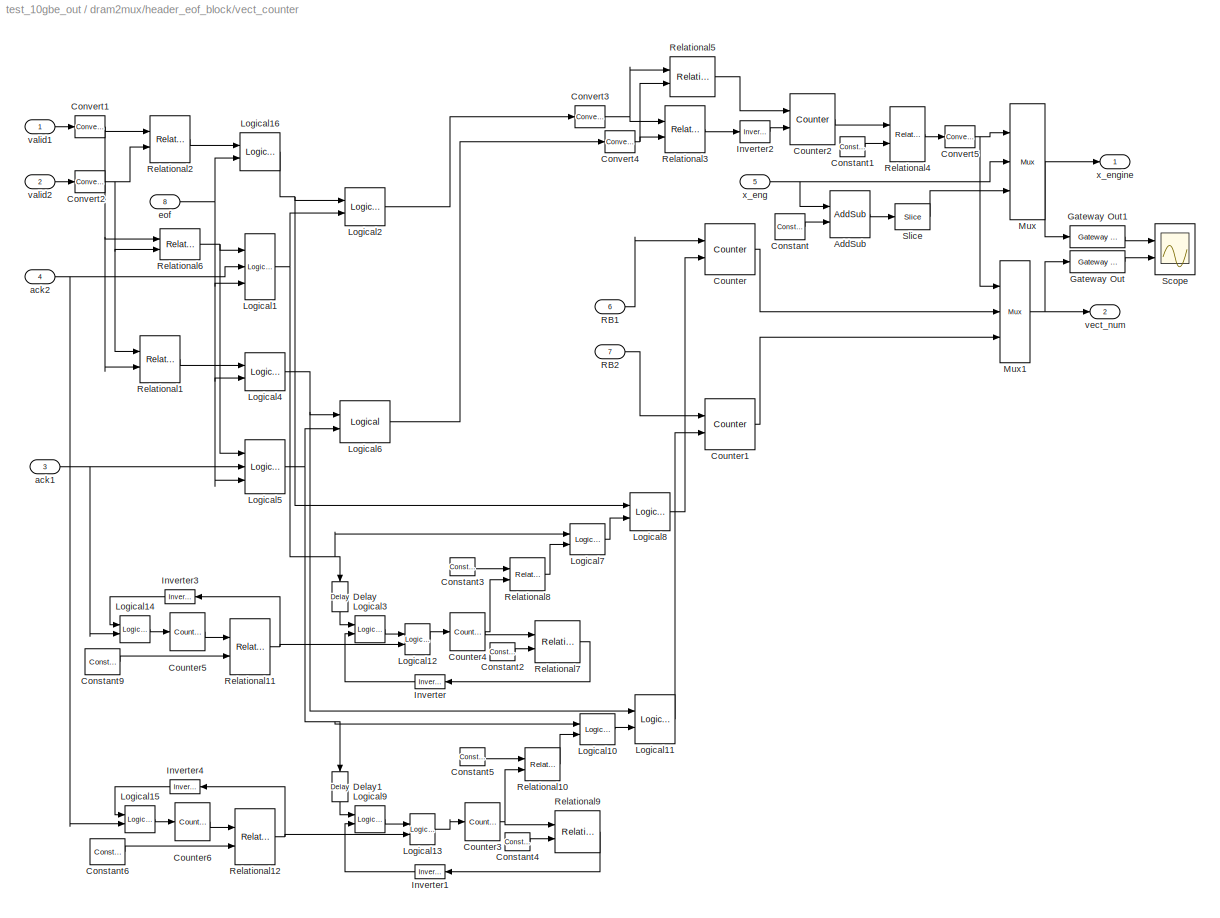
BLOCK [SubSystem] dram2mux/header_eof_block/vect_counter
  MinAlgLoopOccurrences = off
  Ports = [8, 2]
  RTWSystemCode = Auto
  TreatAsAtomicUnit = off
BLOCK [Reference] dram2mux/header_eof_block/vect_counter/AddSub  REF=xbsIndex_r3/AddSub
  Ports = [2, 1]
  SourceBlock = xbsIndex_r3/AddSub
  SourceType = Xilinx Adder/Subtractor
  arith_type = Unsigned
  bin_pt = 2
  dbl_ovrd = off
  en = off
  explicit_period = off
  gen_core = off
  latency = 0
  mode = Addition
  n_bits = 8
  overflow = Wrap
  period = 1
  pipeline = off
  precision = Full
  quantization = Truncate
  show_param = off
  use_carryin = off
  use_carryout = off
  use_core = on
  use_rpm = on
  xl_area = [0, 0, 0, 0, 0, 0, 0]
  xl_use_area = off
BLOCK [Reference] dram2mux/header_eof_block/vect_counter/Constant  REF=xbsIndex_r3/Constant
  Ports = [0, 1]
  SourceBlock = xbsIndex_r3/Constant
  SourceType = Xilinx Constant Block
  arith_type = Unsigned
  bin_pt = 0
  carry = CIN
  const = 1
  dbl_ovrd = off
  equ = P=C
  explicit_period = off
  inp1 = P
  inp2 = PCIN>>17
  iostate = 0
  n_bits = 32
  opr = +
  opselect = C
  period = 1
BLOCK [Reference] dram2mux/header_eof_block/vect_counter/Constant1  REF=xbsIndex_r3/Constant
  Ports = [0, 1]
  SourceBlock = xbsIndex_r3/Constant
  SourceType = Xilinx Constant Block
  arith_type = Unsigned
  bin_pt = 0
  carry = CIN
  const = 1
  dbl_ovrd = off
  equ = P=C
  explicit_period = off
  inp1 = P
  inp2 = PCIN>>17
  iostate = 0
  n_bits = 1
  opr = +
  opselect = C
  period = 1
BLOCK [Reference] dram2mux/header_eof_block/vect_counter/Constant2  REF=xbsIndex_r3/Constant
  Ports = [0, 1]
  SourceBlock = xbsIndex_r3/Constant
  SourceType = Xilinx Constant Block
  arith_type = Unsigned
  bin_pt = 0
  carry = CIN
  const = 1
  dbl_ovrd = off
  equ = P=C
  explicit_period = off
  inp1 = P
  inp2 = PCIN>>17
  iostate = 0
  n_bits = 32
  opr = +
  opselect = C
  period = 1
BLOCK [Reference] dram2mux/header_eof_block/vect_counter/Constant3  REF=xbsIndex_r3/Constant
  Ports = [0, 1]
  SourceBlock = xbsIndex_r3/Constant
  SourceType = Xilinx Constant Block
  arith_type = Unsigned
  bin_pt = 0
  carry = CIN
  const = 1
  dbl_ovrd = off
  equ = P=C
  explicit_period = off
  inp1 = P
  inp2 = PCIN>>17
  iostate = 0
  n_bits = 32
  opr = +
  opselect = C
  period = 1
BLOCK [Reference] dram2mux/header_eof_block/vect_counter/Constant4  REF=xbsIndex_r3/Constant
  Ports = [0, 1]
  SourceBlock = xbsIndex_r3/Constant
  SourceType = Xilinx Constant Block
  arith_type = Unsigned
  bin_pt = 0
  carry = CIN
  const = 1
  dbl_ovrd = off
  equ = P=C
  explicit_period = off
  inp1 = P
  inp2 = PCIN>>17
  iostate = 0
  n_bits = 32
  opr = +
  opselect = C
  period = 1
BLOCK [Reference] dram2mux/header_eof_block/vect_counter/Constant5  REF=xbsIndex_r3/Constant
  Ports = [0, 1]
  SourceBlock = xbsIndex_r3/Constant
  SourceType = Xilinx Constant Block
  arith_type = Unsigned
  bin_pt = 0
  carry = CIN
  const = 1
  dbl_ovrd = off
  equ = P=C
  explicit_period = off
  inp1 = P
  inp2 = PCIN>>17
  iostate = 0
  n_bits = 32
  opr = +
  opselect = C
  period = 1
BLOCK [Reference] dram2mux/header_eof_block/vect_counter/Constant6  REF=xbsIndex_r3/Constant
  Ports = [0, 1]
  SourceBlock = xbsIndex_r3/Constant
  SourceType = Xilinx Constant Block
  arith_type = Unsigned
  bin_pt = 0
  carry = CIN
  const = payload_len/2
  dbl_ovrd = off
  equ = P=C
  explicit_period = on
  inp1 = P
  inp2 = PCIN>>17
  iostate = 0
  n_bits = 8
  opr = +
  opselect = C
  period = 1
BLOCK [Reference] dram2mux/header_eof_block/vect_counter/Constant9  REF=xbsIndex_r3/Constant
  Ports = [0, 1]
  SourceBlock = xbsIndex_r3/Constant
  SourceType = Xilinx Constant Block
  arith_type = Unsigned
  bin_pt = 0
  carry = CIN
  const = payload_len/2
  dbl_ovrd = off
  equ = P=C
  explicit_period = on
  inp1 = P
  inp2 = PCIN>>17
  iostate = 0
  n_bits = 8
  opr = +
  opselect = C
  period = 1
BLOCK [Reference] dram2mux/header_eof_block/vect_counter/Convert1  REF=xbsIndex_r3/Convert
  Ports = [1, 1]
  SourceBlock = xbsIndex_r3/Convert
  SourceType = Xilinx Converter Block
  arith_type = Unsigned
  bin_pt = 0
  dbl_ovrd = off
  explicit_period = off
  inserted_by_tool = off
  latency = 0
  n_bits = 1
  overflow = Wrap
  period = 1
  pipeline = off
  quantization = Truncate
  show_param = off
  xl_area = [0, 0, 0, 0, 0, 0, 0]
  xl_use_area = off
BLOCK [Reference] dram2mux/header_eof_block/vect_counter/Convert2  REF=xbsIndex_r3/Convert
  Ports = [1, 1]
  SourceBlock = xbsIndex_r3/Convert
  SourceType = Xilinx Converter Block
  arith_type = Unsigned
  bin_pt = 0
  dbl_ovrd = off
  explicit_period = off
  inserted_by_tool = off
  latency = 0
  n_bits = 1
  overflow = Wrap
  period = 1
  pipeline = off
  quantization = Truncate
  show_param = off
  xl_area = [0, 0, 0, 0, 0, 0, 0]
  xl_use_area = off
BLOCK [Reference] dram2mux/header_eof_block/vect_counter/Convert3  REF=xbsIndex_r3/Convert
  Ports = [1, 1]
  SourceBlock = xbsIndex_r3/Convert
  SourceType = Xilinx Converter Block
  arith_type = Unsigned
  bin_pt = 0
  dbl_ovrd = off
  explicit_period = off
  inserted_by_tool = off
  latency = 0
  n_bits = 1
  overflow = Wrap
  period = 1
  pipeline = off
  quantization = Truncate
  show_param = off
  xl_area = [0, 0, 0, 0, 0, 0, 0]
  xl_use_area = off
BLOCK [Reference] dram2mux/header_eof_block/vect_counter/Convert4  REF=xbsIndex_r3/Convert
  Ports = [1, 1]
  SourceBlock = xbsIndex_r3/Convert
  SourceType = Xilinx Converter Block
  arith_type = Unsigned
  bin_pt = 0
  dbl_ovrd = off
  explicit_period = off
  inserted_by_tool = off
  latency = 0
  n_bits = 1
  overflow = Wrap
  period = 1
  pipeline = off
  quantization = Truncate
  show_param = off
  xl_area = [0, 0, 0, 0, 0, 0, 0]
  xl_use_area = off
BLOCK [Reference] dram2mux/header_eof_block/vect_counter/Convert5  REF=xbsIndex_r3/Convert
  Ports = [1, 1]
  SourceBlock = xbsIndex_r3/Convert
  SourceType = Xilinx Converter Block
  arith_type = Boolean
  bin_pt = 0
  dbl_ovrd = off
  explicit_period = off
  inserted_by_tool = off
  latency = 0
  n_bits = 1
  overflow = Wrap
  period = 1
  pipeline = off
  quantization = Truncate
  show_param = off
  xl_area = [0, 0, 0, 0, 0, 0, 0]
  xl_use_area = off
BLOCK [Reference] dram2mux/header_eof_block/vect_counter/Counter  REF=xbsIndex_r3/Counter
  Ports = [2, 1]
  SourceBlock = xbsIndex_r3/Counter
  SourceType = Xilinx Counter Block
  arith_type = Unsigned
  bin_pt = 0
  cnt_by_val = 1
  cnt_to = Inf
  cnt_type = Free Running
  dbl_ovrd = off
  en = on
  explicit_period = on
  gen_core = off
  load_pin = off
  n_bits = 32
  operation = Up
  period = 1
  rst = on
  show_param = off
  start_count = 0
  use_rpm = on
  xl_area = [0, 0, 0, 0, 0, 0, 0]
  xl_use_area = off
BLOCK [Reference] dram2mux/header_eof_block/vect_counter/Counter1  REF=xbsIndex_r3/Counter
  Ports = [2, 1]
  SourceBlock = xbsIndex_r3/Counter
  SourceType = Xilinx Counter Block
  arith_type = Unsigned
  bin_pt = 0
  cnt_by_val = 1
  cnt_to = Inf
  cnt_type = Free Running
  dbl_ovrd = off
  en = on
  explicit_period = on
  gen_core = off
  load_pin = off
  n_bits = 32
  operation = Up
  period = 1
  rst = on
  show_param = off
  start_count = 0
  use_rpm = on
  xl_area = [0, 0, 0, 0, 0, 0, 0]
  xl_use_area = off
BLOCK [Reference] dram2mux/header_eof_block/vect_counter/Counter2  REF=xbsIndex_r3/Counter
  Ports = [2, 1]
  SourceBlock = xbsIndex_r3/Counter
  SourceType = Xilinx Counter Block
  arith_type = Unsigned
  bin_pt = 0
  cnt_by_val = 1
  cnt_to = Inf
  cnt_type = Free Running
  dbl_ovrd = off
  en = on
  explicit_period = on
  gen_core = off
  load_pin = off
  n_bits = 32
  operation = Up
  period = 1
  rst = on
  show_param = off
  start_count = 0
  use_rpm = on
  xl_area = [0, 0, 0, 0, 0, 0, 0]
  xl_use_area = off
BLOCK [Reference] dram2mux/header_eof_block/vect_counter/Counter3  REF=xbsIndex_r3/Counter
  Ports = [1, 1]
  SourceBlock = xbsIndex_r3/Counter
  SourceType = Xilinx Counter Block
  arith_type = Unsigned
  bin_pt = 0
  cnt_by_val = 1
  cnt_to = Inf
  cnt_type = Free Running
  dbl_ovrd = off
  en = on
  explicit_period = on
  gen_core = off
  load_pin = off
  n_bits = 32
  operation = Up
  period = 1
  rst = off
  show_param = off
  start_count = 0
  use_rpm = on
  xl_area = [0, 0, 0, 0, 0, 0, 0]
  xl_use_area = off
BLOCK [Reference] dram2mux/header_eof_block/vect_counter/Counter4  REF=xbsIndex_r3/Counter
  Ports = [1, 1]
  SourceBlock = xbsIndex_r3/Counter
  SourceType = Xilinx Counter Block
  arith_type = Unsigned
  bin_pt = 0
  cnt_by_val = 1
  cnt_to = Inf
  cnt_type = Free Running
  dbl_ovrd = off
  en = on
  explicit_period = on
  gen_core = off
  load_pin = off
  n_bits = 32
  operation = Up
  period = 1
  rst = off
  show_param = off
  start_count = 0
  use_rpm = on
  xl_area = [0, 0, 0, 0, 0, 0, 0]
  xl_use_area = off
BLOCK [Reference] dram2mux/header_eof_block/vect_counter/Counter5  REF=xbsIndex_r3/Counter
  Ports = [1, 1]
  SourceBlock = xbsIndex_r3/Counter
  SourceType = Xilinx Counter Block
  arith_type = Unsigned
  bin_pt = 0
  cnt_by_val = 1
  cnt_to = Inf
  cnt_type = Free Running
  dbl_ovrd = off
  en = on
  explicit_period = on
  gen_core = off
  load_pin = off
  n_bits = 32
  operation = Up
  period = 1
  rst = off
  show_param = off
  start_count = 0
  use_rpm = on
  xl_area = [0, 0, 0, 0, 0, 0, 0]
  xl_use_area = off
BLOCK [Reference] dram2mux/header_eof_block/vect_counter/Counter6  REF=xbsIndex_r3/Counter
  Ports = [1, 1]
  SourceBlock = xbsIndex_r3/Counter
  SourceType = Xilinx Counter Block
  arith_type = Unsigned
  bin_pt = 0
  cnt_by_val = 1
  cnt_to = Inf
  cnt_type = Free Running
  dbl_ovrd = off
  en = on
  explicit_period = on
  gen_core = off
  load_pin = off
  n_bits = 32
  operation = Up
  period = 1
  rst = off
  show_param = off
  start_count = 0
  use_rpm = on
  xl_area = [0, 0, 0, 0, 0, 0, 0]
  xl_use_area = off
BLOCK [Reference] dram2mux/header_eof_block/vect_counter/Delay  REF=xbsIndex_r3/Delay
  Ports = [1, 1]
  SourceBlock = xbsIndex_r3/Delay
  SourceType = Xilinx Delay Block
  accept_only_valid = off
  dbl_ovrd = off
  en = off
  explicit_period = on
  init_zero = on
  latency = 1
  period = 1
  reg_retiming = off
  show_param = off
  xl_area = [0, 0, 0, 0, 0, 0, 0]
  xl_use_area = off
BLOCK [Reference] dram2mux/header_eof_block/vect_counter/Delay1  REF=xbsIndex_r3/Delay
  Ports = [1, 1]
  SourceBlock = xbsIndex_r3/Delay
  SourceType = Xilinx Delay Block
  accept_only_valid = off
  dbl_ovrd = off
  en = off
  explicit_period = on
  init_zero = on
  latency = 1
  period = 1
  reg_retiming = off
  show_param = off
  xl_area = [0, 0, 0, 0, 0, 0, 0]
  xl_use_area = off
BLOCK [Reference] dram2mux/header_eof_block/vect_counter/Gateway Out  REF=xbsIndex_r3/Gateway Out
  LOCs = {}
  Ports = [1, 1]
  SourceBlock = xbsIndex_r3/Gateway Out
  SourceType = Xilinx Gateway Out
  arith_type = Boolean
  bin_pt = 6
  hdl_port = on
  locs_specified = off
  nbits = 8
  needs_fixed_name = off
  output_type = Double
  overflow = Wrap
  quantization = Truncate
  show_param = off
  timing_constraint = None
  xl_area = [0, 0, 0, 0, 0, 0, 0]
  xl_use_area = off
BLOCK [Reference] dram2mux/header_eof_block/vect_counter/Gateway Out1  REF=xbsIndex_r3/Gateway Out
  LOCs = {}
  Ports = [1, 1]
  SourceBlock = xbsIndex_r3/Gateway Out
  SourceType = Xilinx Gateway Out
  arith_type = Boolean
  bin_pt = 6
  hdl_port = on
  locs_specified = off
  nbits = 8
  needs_fixed_name = off
  output_type = Double
  overflow = Wrap
  quantization = Truncate
  show_param = off
  timing_constraint = None
  xl_area = [0, 0, 0, 0, 0, 0, 0]
  xl_use_area = off
BLOCK [Reference] dram2mux/header_eof_block/vect_counter/Inverter  REF=xbsIndex_r3/Inverter
  Ports = [1, 1]
  SourceBlock = xbsIndex_r3/Inverter
  SourceType = Xilinx Inverter
  dbl_ovrd = off
  en = off
  explicit_period = off
  latency = 0
  period = 1
  show_param = off
  xl_area = [0, 0, 0, 0, 0, 0, 0]
  xl_use_area = off
BLOCK [Reference] dram2mux/header_eof_block/vect_counter/Inverter1  REF=xbsIndex_r3/Inverter
  Ports = [1, 1]
  SourceBlock = xbsIndex_r3/Inverter
  SourceType = Xilinx Inverter
  dbl_ovrd = off
  en = off
  explicit_period = off
  latency = 0
  period = 1
  show_param = off
  xl_area = [0, 0, 0, 0, 0, 0, 0]
  xl_use_area = off
BLOCK [Reference] dram2mux/header_eof_block/vect_counter/Inverter2  REF=xbsIndex_r3/Inverter
  Ports = [1, 1]
  SourceBlock = xbsIndex_r3/Inverter
  SourceType = Xilinx Inverter
  dbl_ovrd = off
  en = off
  explicit_period = off
  latency = 0
  period = 1
  show_param = off
  xl_area = [0, 0, 0, 0, 0, 0, 0]
  xl_use_area = off
BLOCK [Reference] dram2mux/header_eof_block/vect_counter/Inverter3  REF=xbsIndex_r3/Inverter
  Ports = [1, 1]
  SourceBlock = xbsIndex_r3/Inverter
  SourceType = Xilinx Inverter
  dbl_ovrd = off
  en = off
  explicit_period = off
  latency = 0
  period = 1
  show_param = off
  xl_area = [0, 0, 0, 0, 0, 0, 0]
  xl_use_area = off
BLOCK [Reference] dram2mux/header_eof_block/vect_counter/Inverter4  REF=xbsIndex_r3/Inverter
  Ports = [1, 1]
  SourceBlock = xbsIndex_r3/Inverter
  SourceType = Xilinx Inverter
  dbl_ovrd = off
  en = off
  explicit_period = off
  latency = 0
  period = 1
  show_param = off
  xl_area = [0, 0, 0, 0, 0, 0, 0]
  xl_use_area = off
BLOCK [Reference] dram2mux/header_eof_block/vect_counter/Logical1  REF=xbsIndex_r3/Logical
  Ports = [3, 1]
  SourceBlock = xbsIndex_r3/Logical
  SourceType = Xilinx Logical Block
  align_bp = on
  arith_type = Unsigned
  bin_pt = 2
  dbl_ovrd = off
  en = off
  explicit_period = off
  inputs = 3
  latency = 0
  logical_function = AND
  n_bits = 8
  period = 1
  precision = Full
  show_param = off
  xl_area = [0, 0, 0, 0, 0, 0, 0]
  xl_use_area = off
BLOCK [Reference] dram2mux/header_eof_block/vect_counter/Logical10  REF=xbsIndex_r3/Logical
  Ports = [2, 1]
  SourceBlock = xbsIndex_r3/Logical
  SourceType = Xilinx Logical Block
  align_bp = on
  arith_type = Unsigned
  bin_pt = 2
  dbl_ovrd = off
  en = off
  explicit_period = off
  inputs = 2
  latency = 0
  logical_function = AND
  n_bits = 8
  period = 1
  precision = Full
  show_param = off
  xl_area = [0, 0, 0, 0, 0, 0, 0]
  xl_use_area = off
BLOCK [Reference] dram2mux/header_eof_block/vect_counter/Logical11  REF=xbsIndex_r3/Logical
  Ports = [2, 1]
  SourceBlock = xbsIndex_r3/Logical
  SourceType = Xilinx Logical Block
  align_bp = on
  arith_type = Unsigned
  bin_pt = 2
  dbl_ovrd = off
  en = off
  explicit_period = off
  inputs = 2
  latency = 0
  logical_function = OR
  n_bits = 8
  period = 1
  precision = Full
  show_param = off
  xl_area = [0, 0, 0, 0, 0, 0, 0]
  xl_use_area = off
BLOCK [Reference] dram2mux/header_eof_block/vect_counter/Logical12  REF=xbsIndex_r3/Logical
  Ports = [2, 1]
  SourceBlock = xbsIndex_r3/Logical
  SourceType = Xilinx Logical Block
  align_bp = on
  arith_type = Unsigned
  bin_pt = 2
  dbl_ovrd = off
  en = off
  explicit_period = off
  inputs = 2
  latency = 0
  logical_function = OR
  n_bits = 8
  period = 1
  precision = Full
  show_param = off
  xl_area = [0, 0, 0, 0, 0, 0, 0]
  xl_use_area = off
BLOCK [Reference] dram2mux/header_eof_block/vect_counter/Logical13  REF=xbsIndex_r3/Logical
  Ports = [2, 1]
  SourceBlock = xbsIndex_r3/Logical
  SourceType = Xilinx Logical Block
  align_bp = on
  arith_type = Unsigned
  bin_pt = 2
  dbl_ovrd = off
  en = off
  explicit_period = off
  inputs = 2
  latency = 0
  logical_function = OR
  n_bits = 8
  period = 1
  precision = Full
  show_param = off
  xl_area = [0, 0, 0, 0, 0, 0, 0]
  xl_use_area = off
BLOCK [Reference] dram2mux/header_eof_block/vect_counter/Logical14  REF=xbsIndex_r3/Logical
  Ports = [2, 1]
  SourceBlock = xbsIndex_r3/Logical
  SourceType = Xilinx Logical Block
  align_bp = on
  arith_type = Unsigned
  bin_pt = 2
  dbl_ovrd = off
  en = off
  explicit_period = off
  inputs = 2
  latency = 0
  logical_function = AND
  n_bits = 8
  period = 1
  precision = Full
  show_param = off
  xl_area = [0, 0, 0, 0, 0, 0, 0]
  xl_use_area = off
BLOCK [Reference] dram2mux/header_eof_block/vect_counter/Logical15  REF=xbsIndex_r3/Logical
  Ports = [2, 1]
  SourceBlock = xbsIndex_r3/Logical
  SourceType = Xilinx Logical Block
  align_bp = on
  arith_type = Unsigned
  bin_pt = 2
  dbl_ovrd = off
  en = off
  explicit_period = off
  inputs = 2
  latency = 0
  logical_function = AND
  n_bits = 8
  period = 1
  precision = Full
  show_param = off
  xl_area = [0, 0, 0, 0, 0, 0, 0]
  xl_use_area = off
BLOCK [Reference] dram2mux/header_eof_block/vect_counter/Logical16  REF=xbsIndex_r3/Logical
  Ports = [2, 1]
  SourceBlock = xbsIndex_r3/Logical
  SourceType = Xilinx Logical Block
  align_bp = on
  arith_type = Unsigned
  bin_pt = 2
  dbl_ovrd = off
  en = off
  explicit_period = off
  inputs = 2
  latency = 0
  logical_function = AND
  n_bits = 8
  period = 1
  precision = Full
  show_param = off
  xl_area = [0, 0, 0, 0, 0, 0, 0]
  xl_use_area = off
BLOCK [Reference] dram2mux/header_eof_block/vect_counter/Logical2  REF=xbsIndex_r3/Logical
  Ports = [2, 1]
  SourceBlock = xbsIndex_r3/Logical
  SourceType = Xilinx Logical Block
  align_bp = on
  arith_type = Unsigned
  bin_pt = 2
  dbl_ovrd = off
  en = off
  explicit_period = off
  inputs = 2
  latency = 0
  logical_function = OR
  n_bits = 8
  period = 1
  precision = Full
  show_param = off
  xl_area = [0, 0, 0, 0, 0, 0, 0]
  xl_use_area = off
BLOCK [Reference] dram2mux/header_eof_block/vect_counter/Logical3  REF=xbsIndex_r3/Logical
  Ports = [2, 1]
  SourceBlock = xbsIndex_r3/Logical
  SourceType = Xilinx Logical Block
  align_bp = on
  arith_type = Unsigned
  bin_pt = 2
  dbl_ovrd = off
  en = off
  explicit_period = off
  inputs = 2
  latency = 0
  logical_function = AND
  n_bits = 8
  period = 1
  precision = Full
  show_param = off
  xl_area = [0, 0, 0, 0, 0, 0, 0]
  xl_use_area = off
BLOCK [Reference] dram2mux/header_eof_block/vect_counter/Logical4  REF=xbsIndex_r3/Logical
  Ports = [2, 1]
  SourceBlock = xbsIndex_r3/Logical
  SourceType = Xilinx Logical Block
  align_bp = on
  arith_type = Unsigned
  bin_pt = 2
  dbl_ovrd = off
  en = off
  explicit_period = off
  inputs = 2
  latency = 0
  logical_function = AND
  n_bits = 8
  period = 1
  precision = Full
  show_param = off
  xl_area = [0, 0, 0, 0, 0, 0, 0]
  xl_use_area = off
BLOCK [Reference] dram2mux/header_eof_block/vect_counter/Logical5  REF=xbsIndex_r3/Logical
  Ports = [3, 1]
  SourceBlock = xbsIndex_r3/Logical
  SourceType = Xilinx Logical Block
  align_bp = on
  arith_type = Unsigned
  bin_pt = 2
  dbl_ovrd = off
  en = off
  explicit_period = off
  inputs = 3
  latency = 0
  logical_function = AND
  n_bits = 8
  period = 1
  precision = Full
  show_param = off
  xl_area = [0, 0, 0, 0, 0, 0, 0]
  xl_use_area = off
BLOCK [Reference] dram2mux/header_eof_block/vect_counter/Logical6  REF=xbsIndex_r3/Logical
  Ports = [2, 1]
  SourceBlock = xbsIndex_r3/Logical
  SourceType = Xilinx Logical Block
  align_bp = on
  arith_type = Unsigned
  bin_pt = 2
  dbl_ovrd = off
  en = off
  explicit_period = off
  inputs = 2
  latency = 0
  logical_function = OR
  n_bits = 8
  period = 1
  precision = Full
  show_param = off
  xl_area = [0, 0, 0, 0, 0, 0, 0]
  xl_use_area = off
BLOCK [Reference] dram2mux/header_eof_block/vect_counter/Logical7  REF=xbsIndex_r3/Logical
  Ports = [2, 1]
  SourceBlock = xbsIndex_r3/Logical
  SourceType = Xilinx Logical Block
  align_bp = on
  arith_type = Unsigned
  bin_pt = 2
  dbl_ovrd = off
  en = off
  explicit_period = off
  inputs = 2
  latency = 0
  logical_function = AND
  n_bits = 8
  period = 1
  precision = Full
  show_param = off
  xl_area = [0, 0, 0, 0, 0, 0, 0]
  xl_use_area = off
BLOCK [Reference] dram2mux/header_eof_block/vect_counter/Logical8  REF=xbsIndex_r3/Logical
  Ports = [2, 1]
  SourceBlock = xbsIndex_r3/Logical
  SourceType = Xilinx Logical Block
  align_bp = on
  arith_type = Unsigned
  bin_pt = 2
  dbl_ovrd = off
  en = off
  explicit_period = off
  inputs = 2
  latency = 0
  logical_function = OR
  n_bits = 8
  period = 1
  precision = Full
  show_param = off
  xl_area = [0, 0, 0, 0, 0, 0, 0]
  xl_use_area = off
BLOCK [Reference] dram2mux/header_eof_block/vect_counter/Logical9  REF=xbsIndex_r3/Logical
  Ports = [2, 1]
  SourceBlock = xbsIndex_r3/Logical
  SourceType = Xilinx Logical Block
  align_bp = on
  arith_type = Unsigned
  bin_pt = 2
  dbl_ovrd = off
  en = off
  explicit_period = off
  inputs = 2
  latency = 0
  logical_function = AND
  n_bits = 8
  period = 1
  precision = Full
  show_param = off
  xl_area = [0, 0, 0, 0, 0, 0, 0]
  xl_use_area = off
BLOCK [Reference] dram2mux/header_eof_block/vect_counter/Mux  REF=xbsIndex_r3/Mux
  Ports = [3, 1]
  SourceBlock = xbsIndex_r3/Mux
  SourceType = Xilinx Multiplexer Block
  arith_type = Signed  (2's comp)
  bin_pt = 2
  dbl_ovrd = off
  en = off
  explicit_period = off
  gen_core = off
  inputs = 2
  latency = 0
  mux_type = off
  n_bits = 8
  overflow = Wrap
  period = 1
  precision = Full
  quantization = Truncate
  show_param = off
  use_rpm = off
  xl_area = [0, 0, 0, 0, 0, 0, 0]
  xl_use_area = off
BLOCK [Reference] dram2mux/header_eof_block/vect_counter/Mux1  REF=xbsIndex_r3/Mux
  Ports = [3, 1]
  SourceBlock = xbsIndex_r3/Mux
  SourceType = Xilinx Multiplexer Block
  arith_type = Signed  (2's comp)
  bin_pt = 2
  dbl_ovrd = off
  en = off
  explicit_period = off
  gen_core = off
  inputs = 2
  latency = 0
  mux_type = off
  n_bits = 8
  overflow = Wrap
  period = 1
  precision = Full
  quantization = Truncate
  show_param = off
  use_rpm = off
  xl_area = [0, 0, 0, 0, 0, 0, 0]
  xl_use_area = off
BLOCK [Inport] dram2mux/header_eof_block/vect_counter/RB1
  IconDisplay = Port number
  LatchInput = off
  Port = 6
BLOCK [Inport] dram2mux/header_eof_block/vect_counter/RB2
  IconDisplay = Port number
  LatchInput = off
  Port = 7
BLOCK [Reference] dram2mux/header_eof_block/vect_counter/Relational1  REF=xbsIndex_r3/Relational
  Ports = [2, 1]
  SourceBlock = xbsIndex_r3/Relational
  SourceType = Xilinx Relational Block
  dbl_ovrd = off
  en = off
  explicit_period = off
  latency = 0
  mode = a>b
  period = 1
  show_param = off
  xl_area = [0, 0, 0, 0, 0, 0, 0]
  xl_use_area = off
BLOCK [Reference] dram2mux/header_eof_block/vect_counter/Relational10  REF=xbsIndex_r3/Relational
  Ports = [2, 1]
  SourceBlock = xbsIndex_r3/Relational
  SourceType = Xilinx Relational Block
  dbl_ovrd = off
  en = off
  explicit_period = off
  latency = 0
  mode = a<=b
  period = 1
  show_param = off
  xl_area = [0, 0, 0, 0, 0, 0, 0]
  xl_use_area = off
BLOCK [Reference] dram2mux/header_eof_block/vect_counter/Relational11  REF=xbsIndex_r3/Relational
  Ports = [2, 1]
  SourceBlock = xbsIndex_r3/Relational
  SourceType = Xilinx Relational Block
  dbl_ovrd = off
  en = off
  explicit_period = off
  latency = 0
  mode = a>=b
  period = 1
  show_param = off
  xl_area = [0, 0, 0, 0, 0, 0, 0]
  xl_use_area = off
BLOCK [Reference] dram2mux/header_eof_block/vect_counter/Relational12  REF=xbsIndex_r3/Relational
  Ports = [2, 1]
  SourceBlock = xbsIndex_r3/Relational
  SourceType = Xilinx Relational Block
  dbl_ovrd = off
  en = off
  explicit_period = off
  latency = 0
  mode = a>=b
  period = 1
  show_param = off
  xl_area = [0, 0, 0, 0, 0, 0, 0]
  xl_use_area = off
BLOCK [Reference] dram2mux/header_eof_block/vect_counter/Relational2  REF=xbsIndex_r3/Relational
  Ports = [2, 1]
  SourceBlock = xbsIndex_r3/Relational
  SourceType = Xilinx Relational Block
  dbl_ovrd = off
  en = off
  explicit_period = off
  latency = 0
  mode = a>b
  period = 1
  show_param = off
  xl_area = [0, 0, 0, 0, 0, 0, 0]
  xl_use_area = off
BLOCK [Reference] dram2mux/header_eof_block/vect_counter/Relational3  REF=xbsIndex_r3/Relational
  Ports = [2, 1]
  SourceBlock = xbsIndex_r3/Relational
  SourceType = Xilinx Relational Block
  dbl_ovrd = off
  en = off
  explicit_period = off
  latency = 0
  mode = a>=b
  period = 1
  show_param = off
  xl_area = [0, 0, 0, 0, 0, 0, 0]
  xl_use_area = off
BLOCK [Reference] dram2mux/header_eof_block/vect_counter/Relational4  REF=xbsIndex_r3/Relational
  Ports = [2, 1]
  SourceBlock = xbsIndex_r3/Relational
  SourceType = Xilinx Relational Block
  dbl_ovrd = off
  en = off
  explicit_period = off
  latency = 0
  mode = a>=b
  period = 1
  show_param = off
  xl_area = [0, 0, 0, 0, 0, 0, 0]
  xl_use_area = off
BLOCK [Reference] dram2mux/header_eof_block/vect_counter/Relational5  REF=xbsIndex_r3/Relational
  Ports = [2, 1]
  SourceBlock = xbsIndex_r3/Relational
  SourceType = Xilinx Relational Block
  dbl_ovrd = off
  en = off
  explicit_period = off
  latency = 0
  mode = a>b
  period = 1
  show_param = off
  xl_area = [0, 0, 0, 0, 0, 0, 0]
  xl_use_area = off
BLOCK [Reference] dram2mux/header_eof_block/vect_counter/Relational6  REF=xbsIndex_r3/Relational
  Ports = [2, 1]
  SourceBlock = xbsIndex_r3/Relational
  SourceType = Xilinx Relational Block
  dbl_ovrd = off
  en = off
  explicit_period = off
  latency = 0
  mode = a=b
  period = 1
  show_param = off
  xl_area = [0, 0, 0, 0, 0, 0, 0]
  xl_use_area = off
BLOCK [Reference] dram2mux/header_eof_block/vect_counter/Relational7  REF=xbsIndex_r3/Relational
  Ports = [2, 1]
  SourceBlock = xbsIndex_r3/Relational
  SourceType = Xilinx Relational Block
  dbl_ovrd = off
  en = off
  explicit_period = off
  latency = 0
  mode = a=b
  period = 1
  show_param = off
  xl_area = [0, 0, 0, 0, 0, 0, 0]
  xl_use_area = off
BLOCK [Reference] dram2mux/header_eof_block/vect_counter/Relational8  REF=xbsIndex_r3/Relational
  Ports = [2, 1]
  SourceBlock = xbsIndex_r3/Relational
  SourceType = Xilinx Relational Block
  dbl_ovrd = off
  en = off
  explicit_period = off
  latency = 0
  mode = a<=b
  period = 1
  show_param = off
  xl_area = [0, 0, 0, 0, 0, 0, 0]
  xl_use_area = off
BLOCK [Reference] dram2mux/header_eof_block/vect_counter/Relational9  REF=xbsIndex_r3/Relational
  Ports = [2, 1]
  SourceBlock = xbsIndex_r3/Relational
  SourceType = Xilinx Relational Block
  dbl_ovrd = off
  en = off
  explicit_period = off
  latency = 0
  mode = a=b
  period = 1
  show_param = off
  xl_area = [0, 0, 0, 0, 0, 0, 0]
  xl_use_area = off
BLOCK [Scope] dram2mux/header_eof_block/vect_counter/Scope
  DataFormat = StructureWithTime
  NumInputPorts = 2
  Ports = [2]
  SaveName = ScopeData4
  YMax = 1~7
  YMin = -1~0
  ZoomMode = xonly
BLOCK [Reference] dram2mux/header_eof_block/vect_counter/Slice  REF=xbsIndex_r3/Slice
  Ports = [1, 1]
  SourceBlock = xbsIndex_r3/Slice
  SourceType = Xilinx Slice Block
  base0 = LSB of Input
  base1 = MSB of Input
  bit0 = 0
  bit1 = 0
  boolean_output = off
  dbl_ovrd = off
  explicit_period = off
  mode = Lower Bit Location + Width
  nbits = 32
  period = 1
BLOCK [Inport] dram2mux/header_eof_block/vect_counter/ack1
  IconDisplay = Port number
  LatchInput = off
  Port = 3
BLOCK [Inport] dram2mux/header_eof_block/vect_counter/ack2
  IconDisplay = Port number
  LatchInput = off
  Port = 4
BLOCK [Inport] dram2mux/header_eof_block/vect_counter/eof
  IconDisplay = Port number
  LatchInput = off
  Port = 8
BLOCK [Inport] dram2mux/header_eof_block/vect_counter/valid1
  IconDisplay = Port number
  LatchInput = off
  Port = 1
BLOCK [Inport] dram2mux/header_eof_block/vect_counter/valid2
  IconDisplay = Port number
  LatchInput = off
  Port = 2
BLOCK [Outport] dram2mux/header_eof_block/vect_counter/vect_num
  BusOutputAsStruct = off
  IconDisplay = Port number
  Port = 2
BLOCK [Inport] dram2mux/header_eof_block/vect_counter/x_eng
  IconDisplay = Port number
  LatchInput = off
  Port = 5
BLOCK [Outport] dram2mux/header_eof_block/vect_counter/x_engine
  BusOutputAsStruct = off
  IconDisplay = Port number
BLOCK [Inport] dram2mux/header_eof_block/x_engine
  IconDisplay = Port number
  LatchInput = off
  Port = 3
BLOCK [Inport] dram2mux/ip_addr
  IconDisplay = Port number
  LatchInput = off
  Port = 11
BLOCK [Reference] dram2mux/posedge3  REF=casper_library/Misc/posedge  (lib defined in mdl_138b2fc3435f, mdl_4ed325b712b3, +2 more)
  Ports = [1, 1]
  ShowPortLabels = on
  SourceBlock = casper_library/Misc/posedge
  SourceType = posedge
  Tag = Rising Edge Detector
BLOCK [Inport] dram2mux/time
  IconDisplay = Port number
  LatchInput = off
  Port = 7
BLOCK [Reference] dram2mux/upper1  REF=xbsIndex_r3/Slice
  Ports = [1, 1]
  SourceBlock = xbsIndex_r3/Slice
  SourceType = Xilinx Slice Block
  base0 = LSB of Input
  base1 = MSB of Input
  bit0 = 0
  bit1 = 0
  boolean_output = off
  dbl_ovrd = off
  explicit_period = off
  mode = Lower Bit Location + Width
  nbits = 64
  period = 1
BLOCK [Reference] dram2mux/upper2  REF=xbsIndex_r3/Slice
  Ports = [1, 1]
  SourceBlock = xbsIndex_r3/Slice
  SourceType = Xilinx Slice Block
  base0 = LSB of Input
  base1 = MSB of Input
  bit0 = 0
  bit1 = 0
  boolean_output = off
  dbl_ovrd = off
  explicit_period = off
  mode = Upper Bit Location + Width
  nbits = 64
  period = 1
BLOCK [Reference] dram2mux/upper3  REF=xbsIndex_r3/Slice
  Ports = [1, 1]
  SourceBlock = xbsIndex_r3/Slice
  SourceType = Xilinx Slice Block
  base0 = LSB of Input
  base1 = MSB of Input
  bit0 = 0
  bit1 = 0
  boolean_output = off
  dbl_ovrd = off
  explicit_period = off
  mode = Upper Bit Location + Width
  nbits = 64
  period = 1
BLOCK [Reference] dram2mux/upper4  REF=xbsIndex_r3/Slice
  Ports = [1, 1]
  SourceBlock = xbsIndex_r3/Slice
  SourceType = Xilinx Slice Block
  base0 = LSB of Input
  base1 = MSB of Input
  bit0 = 0
  bit1 = 0
  boolean_output = off
  dbl_ovrd = off
  explicit_period = off
  mode = Lower Bit Location + Width
  nbits = 64
  period = 1
BLOCK [Outport] dram2mux/valid
  BusOutputAsStruct = off
  IconDisplay = Port number
  Port = 2
BLOCK [Inport] dram2mux/valid_0
  IconDisplay = Port number
  LatchInput = off
  Port = 2
BLOCK [Inport] dram2mux/valid_1
  IconDisplay = Port number
  LatchInput = off
  Port = 5
BLOCK [Inport] dram2mux/x_eng_base
  IconDisplay = Port number
  LatchInput = off
  Port = 8
BLOCK [SubSystem] xeng_reorder_sim_0
  MinAlgLoopOccurrences = off
  Ports = [1, 3]
  RTWSystemCode = Auto
  TreatAsAtomicUnit = off
BLOCK [Reference] xeng_reorder_sim_0/Counter4  REF=xbsIndex_r3/Counter
  Ports = [2, 1]
  SourceBlock = xbsIndex_r3/Counter
  SourceType = Xilinx Counter Block
  arith_type = Unsigned
  bin_pt = 0
  cnt_by_val = 1
  cnt_to = Inf
  cnt_type = Free Running
  dbl_ovrd = off
  en = on
  explicit_period = off
  gen_core = off
  load_pin = off
  n_bits = 64
  operation = Up
  period = 1
  rst = on
  show_param = off
  start_count = 0
  use_rpm = off
  xl_area = [0, 0, 0, 0, 0, 0, 0]
  xl_use_area = off
BLOCK [Reference] xeng_reorder_sim_0/Counter5  REF=xbsIndex_r3/Counter
  Ports = [1, 1]
  SourceBlock = xbsIndex_r3/Counter
  SourceType = Xilinx Counter Block
  arith_type = Unsigned
  bin_pt = 0
  cnt_by_val = 1
  cnt_to = Inf
  cnt_type = Free Running
  dbl_ovrd = off
  en = off
  explicit_period = on
  gen_core = off
  load_pin = off
  n_bits = 32
  operation = Up
  period = 1
  rst = on
  show_param = off
  start_count = 1
  use_rpm = on
  xl_area = [0, 0, 0, 0, 0, 0, 0]
  xl_use_area = off
BLOCK [Reference] xeng_reorder_sim_0/Counter6  REF=xbsIndex_r3/Counter
  Ports = [2, 1]
  SourceBlock = xbsIndex_r3/Counter
  SourceType = Xilinx Counter Block
  arith_type = Unsigned
  bin_pt = 0
  cnt_by_val = 1
  cnt_to = 1023
  cnt_type = Free Running
  dbl_ovrd = off
  en = on
  explicit_period = on
  gen_core = off
  load_pin = off
  n_bits = 32
  operation = Up
  period = 1
  rst = on
  show_param = off
  start_count = 0
  use_rpm = on
  xl_area = [0, 0, 0, 0, 0, 0, 0]
  xl_use_area = off
BLOCK [Reference] xeng_reorder_sim_0/Inverter1  REF=xbsIndex_r3/Inverter
  Ports = [1, 1]
  SourceBlock = xbsIndex_r3/Inverter
  SourceType = Xilinx Inverter
  dbl_ovrd = off
  en = off
  explicit_period = off
  latency = 0
  period = 1
  show_param = off
  xl_area = [0, 0, 0, 0, 0, 0, 0]
  xl_use_area = off
BLOCK [Reference] xeng_reorder_sim_0/Logical3  REF=xbsIndex_r3/Logical
  Ports = [2, 1]
  SourceBlock = xbsIndex_r3/Logical
  SourceType = Xilinx Logical Block
  align_bp = on
  arith_type = Unsigned
  bin_pt = 2
  dbl_ovrd = off
  en = off
  explicit_period = off
  inputs = 2
  latency = 0
  logical_function = AND
  n_bits = 8
  period = 1
  precision = Full
  show_param = off
  xl_area = [0, 0, 0, 0, 0, 0, 0]
  xl_use_area = off
BLOCK [Outport] xeng_reorder_sim_0/RB_done
  BusOutputAsStruct = off
  IconDisplay = Port number
  Port = 3
BLOCK [Reference] xeng_reorder_sim_0/Register  REF=xbsIndex_r3/Register
  Ports = [3, 1]
  SourceBlock = xbsIndex_r3/Register
  SourceType = Xilinx Register Block
  dbl_ovrd = off
  en = on
  explicit_period = off
  init = 0
  out_en = off
  period = 1
  reg_only_valid = off
  rst = on
  show_param = off
  xl_area = [0, 0, 0, 0, 0, 0, 0]
  xl_use_area = off
BLOCK [Reference] xeng_reorder_sim_0/Relational1  REF=xbsIndex_r3/Relational
  Ports = [2, 1]
  SourceBlock = xbsIndex_r3/Relational
  SourceType = Xilinx Relational Block
  dbl_ovrd = off
  en = off
  explicit_period = on
  latency = 0
  mode = a>=b
  period = 1
  show_param = off
  xl_area = [0, 0, 0, 0, 0, 0, 0]
  xl_use_area = off
BLOCK [Reference] xeng_reorder_sim_0/Relational2  REF=xbsIndex_r3/Relational
  Ports = [2, 1]
  SourceBlock = xbsIndex_r3/Relational
  SourceType = Xilinx Relational Block
  dbl_ovrd = off
  en = off
  explicit_period = off
  latency = 0
  mode = a<b
  period = 1
  show_param = off
  xl_area = [0, 0, 0, 0, 0, 0, 0]
  xl_use_area = off
BLOCK [Inport] xeng_reorder_sim_0/ack
  IconDisplay = Port number
  LatchInput = off
  Port = 1
BLOCK [Outport] xeng_reorder_sim_0/d_out
  BusOutputAsStruct = off
  IconDisplay = Port number
BLOCK [Reference] xeng_reorder_sim_0/payload_len1  REF=xps_library/software register  (lib defined in mdl_00b5cec29cd0, mdl_02ab6ecaa3d1, +5 more)
  Ports = [1, 1]
  ShowPortLabels = on
  SourceBlock = xps_library/software register
  Tag = xps:sw_reg
  arith_type = Unsigned
  bin_pt = 0
  bitwidth = 32
  gw_name = test_10gbe_out_xeng_reorder_sim_0_payload_len1_user_data_out
  io_dir = From Processor
  sample_period = 1
BLOCK [Reference] xeng_reorder_sim_0/period1  REF=xps_library/software register  (lib defined in mdl_00b5cec29cd0, mdl_02ab6ecaa3d1, +5 more)
  Ports = [1, 1]
  ShowPortLabels = on
  SourceBlock = xps_library/software register
  Tag = xps:sw_reg
  arith_type = Unsigned
  bin_pt = 0
  bitwidth = 32
  gw_name = test_10gbe_out_xeng_reorder_sim_0_period1_user_data_out
  io_dir = From Processor
  sample_period = 1
BLOCK [Reference] xeng_reorder_sim_0/posedge1  REF=casper_library/Misc/pulse_ext/posedge  (lib defined in mdl_138b2fc3435f, mdl_4ed325b712b3, +2 more)
  Ports = [1, 1]
  ShowPortLabels = on
  SourceBlock = casper_library/Misc/pulse_ext/posedge
  SourceType = SubSystem
  Tag = Rising Edge Detector
BLOCK [Constant] xeng_reorder_sim_0/sim_freq1
  Value = 30000
BLOCK [Constant] xeng_reorder_sim_0/sim_length1
  Value = 8432
BLOCK [Outport] xeng_reorder_sim_0/valid
  BusOutputAsStruct = off
  IconDisplay = Port number
  Port = 2
BLOCK [SubSystem] xeng_reorder_sim_1
  MinAlgLoopOccurrences = off
  Ports = [1, 4]
  RTWSystemCode = Auto
  TreatAsAtomicUnit = off
BLOCK [Reference] xeng_reorder_sim_1/Counter1  REF=xbsIndex_r3/Counter
  Ports = [2, 1]
  SourceBlock = xbsIndex_r3/Counter
  SourceType = Xilinx Counter Block
  arith_type = Unsigned
  bin_pt = 0
  cnt_by_val = 1
  cnt_to = Inf
  cnt_type = Free Running
  dbl_ovrd = off
  en = on
  explicit_period = off
  gen_core = off
  load_pin = off
  n_bits = 64
  operation = Up
  period = 1
  rst = on
  show_param = off
  start_count = 0
  use_rpm = off
  xl_area = [0, 0, 0, 0, 0, 0, 0]
  xl_use_area = off
BLOCK [Reference] xeng_reorder_sim_1/Counter2  REF=xbsIndex_r3/Counter
  Ports = [1, 1]
  SourceBlock = xbsIndex_r3/Counter
  SourceType = Xilinx Counter Block
  arith_type = Unsigned
  bin_pt = 0
  cnt_by_val = 1
  cnt_to = Inf
  cnt_type = Free Running
  dbl_ovrd = off
  en = off
  explicit_period = on
  gen_core = off
  load_pin = off
  n_bits = 32
  operation = Up
  period = 1
  rst = on
  show_param = off
  start_count = 1
  use_rpm = on
  xl_area = [0, 0, 0, 0, 0, 0, 0]
  xl_use_area = off
BLOCK [Reference] xeng_reorder_sim_1/Counter3  REF=xbsIndex_r3/Counter
  Ports = [2, 1]
  SourceBlock = xbsIndex_r3/Counter
  SourceType = Xilinx Counter Block
  arith_type = Unsigned
  bin_pt = 0
  cnt_by_val = 1
  cnt_to = 1023
  cnt_type = Free Running
  dbl_ovrd = off
  en = on
  explicit_period = on
  gen_core = off
  load_pin = off
  n_bits = 32
  operation = Up
  period = 1
  rst = on
  show_param = off
  start_count = 0
  use_rpm = on
  xl_area = [0, 0, 0, 0, 0, 0, 0]
  xl_use_area = off
BLOCK [Reference] xeng_reorder_sim_1/Counter4  REF=xbsIndex_r3/Counter
  Ports = [1, 1]
  SourceBlock = xbsIndex_r3/Counter
  SourceType = Xilinx Counter Block
  arith_type = Unsigned
  bin_pt = 0
  cnt_by_val = 1
  cnt_to = 1023
  cnt_type = Free Running
  dbl_ovrd = off
  en = on
  explicit_period = on
  gen_core = off
  load_pin = off
  n_bits = 64
  operation = Up
  period = 1
  rst = off
  show_param = off
  start_count = 0
  use_rpm = on
  xl_area = [0, 0, 0, 0, 0, 0, 0]
  xl_use_area = off
BLOCK [Reference] xeng_reorder_sim_1/Inverter  REF=xbsIndex_r3/Inverter
  Ports = [1, 1]
  SourceBlock = xbsIndex_r3/Inverter
  SourceType = Xilinx Inverter
  dbl_ovrd = off
  en = off
  explicit_period = off
  latency = 0
  period = 1
  show_param = off
  xl_area = [0, 0, 0, 0, 0, 0, 0]
  xl_use_area = off
BLOCK [Reference] xeng_reorder_sim_1/Logical2  REF=xbsIndex_r3/Logical
  Ports = [2, 1]
  SourceBlock = xbsIndex_r3/Logical
  SourceType = Xilinx Logical Block
  align_bp = on
  arith_type = Unsigned
  bin_pt = 2
  dbl_ovrd = off
  en = off
  explicit_period = off
  inputs = 2
  latency = 0
  logical_function = AND
  n_bits = 8
  period = 1
  precision = Full
  show_param = off
  xl_area = [0, 0, 0, 0, 0, 0, 0]
  xl_use_area = off
BLOCK [Outport] xeng_reorder_sim_1/RB_done
  BusOutputAsStruct = off
  IconDisplay = Port number
  Port = 3
BLOCK [Reference] xeng_reorder_sim_1/Register  REF=xbsIndex_r3/Register
  Ports = [3, 1]
  SourceBlock = xbsIndex_r3/Register
  SourceType = Xilinx Register Block
  dbl_ovrd = off
  en = on
  explicit_period = off
  init = 0
  out_en = off
  period = 1
  reg_only_valid = off
  rst = on
  show_param = off
  xl_area = [0, 0, 0, 0, 0, 0, 0]
  xl_use_area = off
BLOCK [Reference] xeng_reorder_sim_1/Relational  REF=xbsIndex_r3/Relational
  Ports = [2, 1]
  SourceBlock = xbsIndex_r3/Relational
  SourceType = Xilinx Relational Block
  dbl_ovrd = off
  en = off
  explicit_period = on
  latency = 0
  mode = a>=b
  period = 1
  show_param = off
  xl_area = [0, 0, 0, 0, 0, 0, 0]
  xl_use_area = off
BLOCK [Reference] xeng_reorder_sim_1/Relational5  REF=xbsIndex_r3/Relational
  Ports = [2, 1]
  SourceBlock = xbsIndex_r3/Relational
  SourceType = Xilinx Relational Block
  dbl_ovrd = off
  en = off
  explicit_period = off
  latency = 0
  mode = a<b
  period = 1
  show_param = off
  xl_area = [0, 0, 0, 0, 0, 0, 0]
  xl_use_area = off
BLOCK [Inport] xeng_reorder_sim_1/ack
  IconDisplay = Port number
  LatchInput = off
  Port = 1
BLOCK [Outport] xeng_reorder_sim_1/d_out
  BusOutputAsStruct = off
  IconDisplay = Port number
BLOCK [Reference] xeng_reorder_sim_1/payload_len  REF=xps_library/software register  (lib defined in mdl_00b5cec29cd0, mdl_02ab6ecaa3d1, +5 more)
  Ports = [1, 1]
  ShowPortLabels = on
  SourceBlock = xps_library/software register
  Tag = xps:sw_reg
  arith_type = Unsigned
  bin_pt = 0
  bitwidth = 32
  gw_name = test_10gbe_out_xeng_reorder_sim_1_payload_len_user_data_out
  io_dir = From Processor
  sample_period = 1
BLOCK [Reference] xeng_reorder_sim_1/period  REF=xps_library/software register  (lib defined in mdl_00b5cec29cd0, mdl_02ab6ecaa3d1, +5 more)
  Ports = [1, 1]
  ShowPortLabels = on
  SourceBlock = xps_library/software register
  Tag = xps:sw_reg
  arith_type = Unsigned
  bin_pt = 0
  bitwidth = 32
  gw_name = test_10gbe_out_xeng_reorder_sim_1_period_user_data_out
  io_dir = From Processor
  sample_period = 1
BLOCK [Reference] xeng_reorder_sim_1/posedge2  REF=casper_library/Misc/pulse_ext/posedge  (lib defined in mdl_138b2fc3435f, mdl_4ed325b712b3, +2 more)
  Ports = [1, 1]
  ShowPortLabels = on
  SourceBlock = casper_library/Misc/pulse_ext/posedge
  SourceType = SubSystem
  Tag = Rising Edge Detector
BLOCK [Constant] xeng_reorder_sim_1/sim_freq
  Value = 20000
BLOCK [Constant] xeng_reorder_sim_1/sim_length
  Value = 432
BLOCK [Outport] xeng_reorder_sim_1/timestamp
  BusOutputAsStruct = off
  IconDisplay = Port number
  Port = 4
BLOCK [Outport] xeng_reorder_sim_1/valid
  BusOutputAsStruct = off
  IconDisplay = Port number
  Port = 2
LINE Constant10:1 -> dram2mux:11
LINE Constant4:1 -> dram2mux:12
LINE Constant8:1 -> dram2mux:8
LINE Constant9:1 -> dram2mux:9
LINE Gateway Out10:1 -> Scope2:3
LINE Gateway Out11:1 -> Scope2:4
LINE Gateway Out12:1 -> Scope3:1
LINE Gateway Out13:1 -> Scope3:2
LINE Gateway Out14:1 -> Scope3:5
LINE Gateway Out1:1 -> Scope1:3
LINE Gateway Out2:1 -> Scope1:4
LINE Gateway Out3:1 -> Scope1:1
LINE Gateway Out4:1 -> Scope1:2
LINE Gateway Out5:1 -> Scope1:5
LINE Gateway Out6:1 -> Scope3:3
LINE Gateway Out7:1 -> Scope3:4
LINE Gateway Out8:1 -> Scope2:1
LINE Gateway Out9:1 -> Scope2:2
LINE dram2mux/Concat:1 -> dram2mux/Mux5:1
NET dram2mux/Constant2:1 -> dram2mux/Counter1:2, dram2mux/Relational2:1
LINE dram2mux/Constant9:1 -> dram2mux/Relational15:2
NET dram2mux/Convert1:1 -> dram2mux/Relational1:1, dram2mux/Relational3:1
NET dram2mux/Convert2:1 -> dram2mux/Relational1:2, dram2mux/Relational3:2
LINE dram2mux/Convert:1 -> dram2mux/Logical6:2
NET dram2mux/Counter1:1 -> dram2mux/Relational15:1, dram2mux/Relational2:2
NET dram2mux/Counter3:1 -> dram2mux/Concat:2, dram2mux/Convert:1
LINE dram2mux/Delay1:1 -> dram2mux/Logical:1
LINE dram2mux/Delay2:1 -> dram2mux/dest_ip:1
NET dram2mux/Delay:1 -> dram2mux/Delay1:1, dram2mux/Logical:2
NET dram2mux/From4:1 -> dram2mux/Counter1:1, dram2mux/Logical11:1
LINE dram2mux/Inverter1:1 -> dram2mux/Logical9:2
LINE dram2mux/Inverter:1 -> dram2mux/Logical3:1
LINE dram2mux/Logical10:1 -> dram2mux/Logical8:1
LINE dram2mux/Logical11:1 -> dram2mux/Counter1:4
NET dram2mux/Logical1:1 -> dram2mux/Logical5:2, dram2mux/valid:1
LINE dram2mux/Logical2:1 -> dram2mux/Logical4:1
LINE dram2mux/Logical3:1 -> dram2mux/Logical4:2
LINE dram2mux/Logical4:1 -> dram2mux/Logical1:2
NET dram2mux/Logical5:1 -> dram2mux/Delay:1, dram2mux/Logical6:1, dram2mux/Logical9:1
LINE dram2mux/Logical6:1 -> dram2mux/Logical11:2
LINE dram2mux/Logical7:1 -> dram2mux/Logical8:2
LINE dram2mux/Logical8:1 -> dram2mux/Counter1:3
LINE dram2mux/Logical9:1 -> dram2mux/Counter3:1
LINE dram2mux/Logical:1 -> dram2mux/Logical1:1
LINE dram2mux/Mux3:1 -> dram2mux/data_out:1
LINE dram2mux/Mux5:1 -> dram2mux/Mux3:2
LINE dram2mux/RB_done_0:1 -> dram2mux/header_eof_block:5
LINE dram2mux/RB_done_1:1 -> dram2mux/header_eof_block:6
LINE dram2mux/Relational15:1 -> dram2mux/Logical10:1
LINE dram2mux/Relational1:1 -> dram2mux/Logical7:2
NET dram2mux/Relational2:1 -> dram2mux/Concat:1, dram2mux/Inverter:1, dram2mux/Logical2:1
LINE dram2mux/Relational3:1 -> dram2mux/Logical10:2
NET dram2mux/ack:1 -> dram2mux/Logical5:1, dram2mux/ack_block:1, dram2mux/header_eof_block:1
LINE dram2mux/ack_block/Constant10:1 -> dram2mux/ack_block/Relational12:2
LINE dram2mux/ack_block/Constant11:1 -> dram2mux/ack_block/Relational16:2
LINE dram2mux/ack_block/Constant12:1 -> dram2mux/ack_block/Mux2:3
NET dram2mux/ack_block/Constant13:1 -> dram2mux/ack_block/Counter11:2, dram2mux/ack_block/Relational17:1
LINE dram2mux/ack_block/Constant1:1 -> dram2mux/ack_block/Counter6:2
LINE dram2mux/ack_block/Constant4:1 -> dram2mux/ack_block/Relational7:2
LINE dram2mux/ack_block/Constant5:1 -> dram2mux/ack_block/Relational8:1
LINE dram2mux/ack_block/Constant6:1 -> dram2mux/ack_block/Relational9:1
LINE dram2mux/ack_block/Constant7:1 -> dram2mux/ack_block/Relational10:1
LINE dram2mux/ack_block/Constant8:1 -> dram2mux/ack_block/Relational13:1
NET dram2mux/ack_block/Constant:1 -> dram2mux/ack_block/Relational11:2, dram2mux/ack_block/Relational6:2
LINE dram2mux/ack_block/Convert1:1 -> dram2mux/ack_block/Relational1:1
LINE dram2mux/ack_block/Convert2:1 -> dram2mux/ack_block/Relational1:2
NET dram2mux/ack_block/Convert3:1 -> dram2mux/ack_block/Inverter1:1, dram2mux/ack_block/Logical3:1
LINE dram2mux/ack_block/Convert4:1 -> dram2mux/ack_block/Relational2:1
LINE dram2mux/ack_block/Convert5:1 -> dram2mux/ack_block/Relational2:2
LINE dram2mux/ack_block/Convert7:1 -> dram2mux/ack_block/Relational3:1
LINE dram2mux/ack_block/Convert8:1 -> dram2mux/ack_block/Relational3:2
LINE dram2mux/ack_block/Counter11:1 -> dram2mux/ack_block/Relational17:2
LINE dram2mux/ack_block/Counter1:1 -> dram2mux/ack_block/Convert3:1
NET dram2mux/ack_block/Counter6:1 -> dram2mux/ack_block/Relational11:1, dram2mux/ack_block/Relational6:1
NET dram2mux/ack_block/Counter7:1 -> dram2mux/ack_block/Relational12:1, dram2mux/ack_block/Relational16:1, dram2mux/ack_block/Relational7:1
NET dram2mux/ack_block/Counter8:1 -> dram2mux/ack_block/Relational8:2, dram2mux/ack_block/Relational9:2
NET dram2mux/ack_block/Counter9:1 -> dram2mux/ack_block/Relational10:2, dram2mux/ack_block/Relational13:2
LINE dram2mux/ack_block/Delay3:1 -> dram2mux/ack_block/Logical12:1
LINE dram2mux/ack_block/Delay4:1 -> dram2mux/ack_block/Logical13:2
LINE dram2mux/ack_block/Delay5:1 -> dram2mux/ack_block/Counter7:2
LINE dram2mux/ack_block/From10:1 -> dram2mux/ack_block/Convert7:1
LINE dram2mux/ack_block/From1:1 -> dram2mux/ack_block/Convert4:1
LINE dram2mux/ack_block/From2:1 -> dram2mux/ack_block/Logical7:3
LINE dram2mux/ack_block/From3:1 -> dram2mux/ack_block/Logical16:2
LINE dram2mux/ack_block/From4:1 -> dram2mux/ack_block/Logical4:2
LINE dram2mux/ack_block/From5:1 -> dram2mux/ack_block/Logical10:2
LINE dram2mux/ack_block/From6:1 -> dram2mux/ack_block/Convert5:1
LINE dram2mux/ack_block/From7:1 -> dram2mux/ack_block/Logical14:2
LINE dram2mux/ack_block/From8:1 -> dram2mux/ack_block/posedge3:1
LINE dram2mux/ack_block/From9:1 -> dram2mux/ack_block/Inverter3:1
LINE dram2mux/ack_block/From:1 -> dram2mux/ack_block/Convert8:1
LINE dram2mux/ack_block/Inverter1:1 -> dram2mux/ack_block/Logical4:1
LINE dram2mux/ack_block/Inverter2:1 -> dram2mux/ack_block/Register:1
LINE dram2mux/ack_block/Inverter3:1 -> dram2mux/ack_block/Logical17:1
LINE dram2mux/ack_block/Inverter5:1 -> dram2mux/ack_block/Register1:1
LINE dram2mux/ack_block/Inverter6:1 -> dram2mux/ack_block/Goto4:1
LINE dram2mux/ack_block/Inverter7:1 -> dram2mux/ack_block/Goto3:1
NET dram2mux/ack_block/Logical10:1 -> dram2mux/ack_block/Counter8:2, dram2mux/ack_block/Logical11:2
LINE dram2mux/ack_block/Logical11:1 -> dram2mux/ack_block/Register:2
LINE dram2mux/ack_block/Logical12:1 -> dram2mux/ack_block/ack2:1
LINE dram2mux/ack_block/Logical13:1 -> dram2mux/ack_block/Register1:2
NET dram2mux/ack_block/Logical14:1 -> dram2mux/ack_block/Counter9:2, dram2mux/ack_block/Delay4:1
LINE dram2mux/ack_block/Logical15:1 -> dram2mux/ack_block/posedge1:1
LINE dram2mux/ack_block/Logical16:1 -> dram2mux/ack_block/Logical9:2
LINE dram2mux/ack_block/Logical17:1 -> dram2mux/ack_block/Logical2:2
LINE dram2mux/ack_block/Logical1:1 -> dram2mux/ack_block/Logical2:1
LINE dram2mux/ack_block/Logical2:1 -> dram2mux/ack_block/Counter6:3
LINE dram2mux/ack_block/Logical3:1 -> dram2mux/ack_block/Relational2:3
LINE dram2mux/ack_block/Logical4:1 -> dram2mux/ack_block/Counter1:1
LINE dram2mux/ack_block/Logical5:1 -> dram2mux/ack_block/Counter11:3
LINE dram2mux/ack_block/Logical6:1 -> dram2mux/ack_block/Counter6:4
LINE dram2mux/ack_block/Logical7:1 -> dram2mux/ack_block/Logical5:2
LINE dram2mux/ack_block/Logical8:1 -> dram2mux/ack_block/ack1:1
LINE dram2mux/ack_block/Logical9:1 -> dram2mux/ack_block/Counter7:1
NET dram2mux/ack_block/Mux2:1 -> dram2mux/ack_block/Inverter7:1, dram2mux/ack_block/Logical12:2
NET dram2mux/ack_block/Register1:1 -> dram2mux/ack_block/Delay3:1, dram2mux/ack_block/Delay5:1, dram2mux/ack_block/Inverter5:1
NET dram2mux/ack_block/Register:1 -> dram2mux/ack_block/Inverter2:1, dram2mux/ack_block/Logical6:1, dram2mux/ack_block/Logical8:1
LINE dram2mux/ack_block/Relational10:1 -> dram2mux/ack_block/Logical13:1
LINE dram2mux/ack_block/Relational11:1 -> dram2mux/ack_block/Logical15:1
LINE dram2mux/ack_block/Relational12:1 -> dram2mux/ack_block/posedge2:1
LINE dram2mux/ack_block/Relational13:1 -> dram2mux/ack_block/Counter9:1
LINE dram2mux/ack_block/Relational16:1 -> dram2mux/ack_block/Logical15:2
NET dram2mux/ack_block/Relational17:1 -> dram2mux/ack_block/Logical7:2, dram2mux/ack_block/Mux2:1
LINE dram2mux/ack_block/Relational1:1 -> dram2mux/ack_block/Logical1:1
NET dram2mux/ack_block/Relational2:1 -> dram2mux/ack_block/Counter11:1, dram2mux/ack_block/Goto5:1, dram2mux/ack_block/Logical3:2, dram2mux/ack_block/Logical5:1, dram2mux/ack_block/ok22:1
LINE dram2mux/ack_block/Relational3:1 -> dram2mux/ack_block/Logical16:1
NET dram2mux/ack_block/Relational6:1 -> dram2mux/ack_block/Inverter6:1, dram2mux/ack_block/Logical8:2
LINE dram2mux/ack_block/Relational7:1 -> dram2mux/ack_block/Mux2:2
LINE dram2mux/ack_block/Relational8:1 -> dram2mux/ack_block/Logical11:1
LINE dram2mux/ack_block/Relational9:1 -> dram2mux/ack_block/Counter8:1
NET dram2mux/ack_block/ack:1 -> dram2mux/ack_block/Logical10:1, dram2mux/ack_block/Logical14:1, dram2mux/ack_block/Logical7:1
NET dram2mux/ack_block/eof:1 -> dram2mux/ack_block/Goto1:1, dram2mux/ack_block/Logical1:2
LINE dram2mux/ack_block/posedge1:1 -> dram2mux/ack_block/Logical9:1
LINE dram2mux/ack_block/posedge2:1 -> dram2mux/ack_block/Logical17:2
NET dram2mux/ack_block/posedge3:1 -> dram2mux/ack_block/Counter6:1, dram2mux/ack_block/Logical6:2
NET dram2mux/ack_block/valid1:1 -> dram2mux/ack_block/Convert1:1, dram2mux/ack_block/Goto2:1
NET dram2mux/ack_block/valid2:1 -> dram2mux/ack_block/Convert2:1, dram2mux/ack_block/Goto:1
NET dram2mux/ack_block:1 -> dram2mux/ack_out_1:1, dram2mux/header_eof_block:10
NET dram2mux/ack_block:2 -> dram2mux/ack_out_2:1, dram2mux/header_eof_block:11
LINE dram2mux/ack_block:3 -> dram2mux/posedge3:1
NET dram2mux/data_0:1 -> dram2mux/upper1:1, dram2mux/upper2:1
NET dram2mux/data_1:1 -> dram2mux/upper3:1, dram2mux/upper4:1
LINE dram2mux/data_len:1 -> dram2mux/header_eof_block:4
LINE dram2mux/flag:1 -> dram2mux/header_eof_block:7
LINE dram2mux/header_eof_block/Concat1:1 -> dram2mux/header_eof_block/Mux:3
LINE dram2mux/header_eof_block/Concat2:1 -> dram2mux/header_eof_block/Mux:4
LINE dram2mux/header_eof_block/Constant14:1 -> dram2mux/header_eof_block/Relational3:1
NET dram2mux/header_eof_block/Constant15:1 -> dram2mux/header_eof_block/Relational1:1, dram2mux/header_eof_block/Relational4:1
LINE dram2mux/header_eof_block/Constant1:1 -> dram2mux/header_eof_block/Relational:2
LINE dram2mux/header_eof_block/Constant3:1 -> dram2mux/header_eof_block/Mux1:2
LINE dram2mux/header_eof_block/Counter2:1 -> dram2mux/header_eof_block/Relational4:2
NET dram2mux/header_eof_block/Counter4:1 -> dram2mux/header_eof_block/Relational1:2, dram2mux/header_eof_block/Relational:1
NET dram2mux/header_eof_block/Counter5:1 -> dram2mux/header_eof_block/Mux1:3, dram2mux/header_eof_block/Relational3:2
LINE dram2mux/header_eof_block/Delay6:1 -> dram2mux/header_eof_block/Logical17:2
LINE dram2mux/header_eof_block/Delay7:1 -> dram2mux/header_eof_block/sel:1
LINE dram2mux/header_eof_block/Logical16:1 -> dram2mux/header_eof_block/posedge:1
NET dram2mux/header_eof_block/Logical17:1 -> dram2mux/header_eof_block/eof:1, dram2mux/header_eof_block/vect_counter:8
LINE dram2mux/header_eof_block/Mux1:1 -> dram2mux/header_eof_block/Mux:1
LINE dram2mux/header_eof_block/Mux:1 -> dram2mux/header_eof_block/header:1
NET dram2mux/header_eof_block/RB1:1 -> dram2mux/header_eof_block/Logical16:1, dram2mux/header_eof_block/vect_counter:6
NET dram2mux/header_eof_block/RB2:1 -> dram2mux/header_eof_block/Logical16:2, dram2mux/header_eof_block/vect_counter:7
LINE dram2mux/header_eof_block/Relational1:1 -> dram2mux/header_eof_block/Counter4:1
LINE dram2mux/header_eof_block/Relational3:1 -> dram2mux/header_eof_block/Mux1:1
NET dram2mux/header_eof_block/Relational4:1 -> dram2mux/header_eof_block/Counter2:1, dram2mux/header_eof_block/Delay6:1
NET dram2mux/header_eof_block/Relational:1 -> dram2mux/header_eof_block/Delay7:1, dram2mux/header_eof_block/posedge3:1
LINE dram2mux/header_eof_block/ack1:1 -> dram2mux/header_eof_block/vect_counter:3
LINE dram2mux/header_eof_block/ack2:1 -> dram2mux/header_eof_block/vect_counter:4
NET dram2mux/header_eof_block/ack:1 -> dram2mux/header_eof_block/Counter2:2, dram2mux/header_eof_block/Counter4:2, dram2mux/header_eof_block/Counter5:2
LINE dram2mux/header_eof_block/data_len:1 -> dram2mux/header_eof_block/Concat2:2
LINE dram2mux/header_eof_block/flag:1 -> dram2mux/header_eof_block/Concat2:1
LINE dram2mux/header_eof_block/posedge3:1 -> dram2mux/header_eof_block/Counter5:1
LINE dram2mux/header_eof_block/posedge:1 -> dram2mux/header_eof_block/Logical17:1
LINE dram2mux/header_eof_block/time:1 -> dram2mux/header_eof_block/Mux:2
LINE dram2mux/header_eof_block/valid1:1 -> dram2mux/header_eof_block/vect_counter:1
LINE dram2mux/header_eof_block/valid2:1 -> dram2mux/header_eof_block/vect_counter:2
LINE dram2mux/header_eof_block/vect_counter/AddSub:1 -> dram2mux/header_eof_block/vect_counter/Slice:1
LINE dram2mux/header_eof_block/vect_counter/Constant1:1 -> dram2mux/header_eof_block/vect_counter/Relational4:2
LINE dram2mux/header_eof_block/vect_counter/Constant2:1 -> dram2mux/header_eof_block/vect_counter/Relational7:2
LINE dram2mux/header_eof_block/vect_counter/Constant3:1 -> dram2mux/header_eof_block/vect_counter/Relational8:1
LINE dram2mux/header_eof_block/vect_counter/Constant4:1 -> dram2mux/header_eof_block/vect_counter/Relational9:2
LINE dram2mux/header_eof_block/vect_counter/Constant5:1 -> dram2mux/header_eof_block/vect_counter/Relational10:1
LINE dram2mux/header_eof_block/vect_counter/Constant6:1 -> dram2mux/header_eof_block/vect_counter/Relational12:2
LINE dram2mux/header_eof_block/vect_counter/Constant9:1 -> dram2mux/header_eof_block/vect_counter/Relational11:2
LINE dram2mux/header_eof_block/vect_counter/Constant:1 -> dram2mux/header_eof_block/vect_counter/AddSub:2
NET dram2mux/header_eof_block/vect_counter/Convert1:1 -> dram2mux/header_eof_block/vect_counter/Relational1:2, dram2mux/header_eof_block/vect_counter/Relational2:1, dram2mux/header_eof_block/vect_counter/Relational6:1
NET dram2mux/header_eof_block/vect_counter/Convert2:1 -> dram2mux/header_eof_block/vect_counter/Relational1:1, dram2mux/header_eof_block/vect_counter/Relational2:2, dram2mux/header_eof_block/vect_counter/Relational6:2
NET dram2mux/header_eof_block/vect_counter/Convert3:1 -> dram2mux/header_eof_block/vect_counter/Relational3:1, dram2mux/header_eof_block/vect_counter/Relational5:1
NET dram2mux/header_eof_block/vect_counter/Convert4:1 -> dram2mux/header_eof_block/vect_counter/Relational3:2, dram2mux/header_eof_block/vect_counter/Relational5:2
NET dram2mux/header_eof_block/vect_counter/Convert5:1 -> dram2mux/header_eof_block/vect_counter/Mux1:1, dram2mux/header_eof_block/vect_counter/Mux:1
LINE dram2mux/header_eof_block/vect_counter/Counter1:1 -> dram2mux/header_eof_block/vect_counter/Mux1:3
LINE dram2mux/header_eof_block/vect_counter/Counter2:1 -> dram2mux/header_eof_block/vect_counter/Relational4:1
NET dram2mux/header_eof_block/vect_counter/Counter3:1 -> dram2mux/header_eof_block/vect_counter/Relational10:2, dram2mux/header_eof_block/vect_counter/Relational9:1
NET dram2mux/header_eof_block/vect_counter/Counter4:1 -> dram2mux/header_eof_block/vect_counter/Relational7:1, dram2mux/header_eof_block/vect_counter/Relational8:2
LINE dram2mux/header_eof_block/vect_counter/Counter5:1 -> dram2mux/header_eof_block/vect_counter/Relational11:1
LINE dram2mux/header_eof_block/vect_counter/Counter6:1 -> dram2mux/header_eof_block/vect_counter/Relational12:1
LINE dram2mux/header_eof_block/vect_counter/Counter:1 -> dram2mux/header_eof_block/vect_counter/Mux1:2
LINE dram2mux/header_eof_block/vect_counter/Delay1:1 -> dram2mux/header_eof_block/vect_counter/Logical9:1
LINE dram2mux/header_eof_block/vect_counter/Delay:1 -> dram2mux/header_eof_block/vect_counter/Logical3:1
LINE dram2mux/header_eof_block/vect_counter/Gateway Out1:1 -> dram2mux/header_eof_block/vect_counter/Scope:1
LINE dram2mux/header_eof_block/vect_counter/Gateway Out:1 -> dram2mux/header_eof_block/vect_counter/Scope:2
LINE dram2mux/header_eof_block/vect_counter/Inverter1:1 -> dram2mux/header_eof_block/vect_counter/Logical9:2
LINE dram2mux/header_eof_block/vect_counter/Inverter2:1 -> dram2mux/header_eof_block/vect_counter/Counter2:2
LINE dram2mux/header_eof_block/vect_counter/Inverter3:1 -> dram2mux/header_eof_block/vect_counter/Logical14:1
LINE dram2mux/header_eof_block/vect_counter/Inverter4:1 -> dram2mux/header_eof_block/vect_counter/Logical15:1
LINE dram2mux/header_eof_block/vect_counter/Inverter:1 -> dram2mux/header_eof_block/vect_counter/Logical3:2
LINE dram2mux/header_eof_block/vect_counter/Logical10:1 -> dram2mux/header_eof_block/vect_counter/Logical11:2
LINE dram2mux/header_eof_block/vect_counter/Logical11:1 -> dram2mux/header_eof_block/vect_counter/Counter1:2
LINE dram2mux/header_eof_block/vect_counter/Logical12:1 -> dram2mux/header_eof_block/vect_counter/Counter4:1
LINE dram2mux/header_eof_block/vect_counter/Logical13:1 -> dram2mux/header_eof_block/vect_counter/Counter3:1
LINE dram2mux/header_eof_block/vect_counter/Logical14:1 -> dram2mux/header_eof_block/vect_counter/Counter5:1
LINE dram2mux/header_eof_block/vect_counter/Logical15:1 -> dram2mux/header_eof_block/vect_counter/Counter6:1
NET dram2mux/header_eof_block/vect_counter/Logical16:1 -> dram2mux/header_eof_block/vect_counter/Logical2:1, dram2mux/header_eof_block/vect_counter/Logical8:1
NET dram2mux/header_eof_block/vect_counter/Logical1:1 -> dram2mux/header_eof_block/vect_counter/Delay:1, dram2mux/header_eof_block/vect_counter/Logical2:2, dram2mux/header_eof_block/vect_counter/Logical7:1
LINE dram2mux/header_eof_block/vect_counter/Logical2:1 -> dram2mux/header_eof_block/vect_counter/Convert3:1
LINE dram2mux/header_eof_block/vect_counter/Logical3:1 -> dram2mux/header_eof_block/vect_counter/Logical12:1
NET dram2mux/header_eof_block/vect_counter/Logical4:1 -> dram2mux/header_eof_block/vect_counter/Logical11:1, dram2mux/header_eof_block/vect_counter/Logical6:1
NET dram2mux/header_eof_block/vect_counter/Logical5:1 -> dram2mux/header_eof_block/vect_counter/Delay1:1, dram2mux/header_eof_block/vect_counter/Logical10:1, dram2mux/header_eof_block/vect_counter/Logical6:2
LINE dram2mux/header_eof_block/vect_counter/Logical6:1 -> dram2mux/header_eof_block/vect_counter/Convert4:1
LINE dram2mux/header_eof_block/vect_counter/Logical7:1 -> dram2mux/header_eof_block/vect_counter/Logical8:2
LINE dram2mux/header_eof_block/vect_counter/Logical8:1 -> dram2mux/header_eof_block/vect_counter/Counter:2
LINE dram2mux/header_eof_block/vect_counter/Logical9:1 -> dram2mux/header_eof_block/vect_counter/Logical13:1
NET dram2mux/header_eof_block/vect_counter/Mux1:1 -> dram2mux/header_eof_block/vect_counter/Gateway Out:1, dram2mux/header_eof_block/vect_counter/vect_num:1
NET dram2mux/header_eof_block/vect_counter/Mux:1 -> dram2mux/header_eof_block/vect_counter/Gateway Out1:1, dram2mux/header_eof_block/vect_counter/x_engine:1
LINE dram2mux/header_eof_block/vect_counter/RB1:1 -> dram2mux/header_eof_block/vect_counter/Counter:1
LINE dram2mux/header_eof_block/vect_counter/RB2:1 -> dram2mux/header_eof_block/vect_counter/Counter1:1
LINE dram2mux/header_eof_block/vect_counter/Relational10:1 -> dram2mux/header_eof_block/vect_counter/Logical10:2
NET dram2mux/header_eof_block/vect_counter/Relational11:1 -> dram2mux/header_eof_block/vect_counter/Inverter3:1, dram2mux/header_eof_block/vect_counter/Logical12:2
NET dram2mux/header_eof_block/vect_counter/Relational12:1 -> dram2mux/header_eof_block/vect_counter/Inverter4:1, dram2mux/header_eof_block/vect_counter/Logical13:2
LINE dram2mux/header_eof_block/vect_counter/Relational1:1 -> dram2mux/header_eof_block/vect_counter/Logical4:1
LINE dram2mux/header_eof_block/vect_counter/Relational2:1 -> dram2mux/header_eof_block/vect_counter/Logical16:1
LINE dram2mux/header_eof_block/vect_counter/Relational3:1 -> dram2mux/header_eof_block/vect_counter/Inverter2:1
LINE dram2mux/header_eof_block/vect_counter/Relational4:1 -> dram2mux/header_eof_block/vect_counter/Convert5:1
LINE dram2mux/header_eof_block/vect_counter/Relational5:1 -> dram2mux/header_eof_block/vect_counter/Counter2:1
NET dram2mux/header_eof_block/vect_counter/Relational6:1 -> dram2mux/header_eof_block/vect_counter/Logical1:1, dram2mux/header_eof_block/vect_counter/Logical5:1
LINE dram2mux/header_eof_block/vect_counter/Relational7:1 -> dram2mux/header_eof_block/vect_counter/Inverter:1
LINE dram2mux/header_eof_block/vect_counter/Relational8:1 -> dram2mux/header_eof_block/vect_counter/Logical7:2
LINE dram2mux/header_eof_block/vect_counter/Relational9:1 -> dram2mux/header_eof_block/vect_counter/Inverter1:1
LINE dram2mux/header_eof_block/vect_counter/Slice:1 -> dram2mux/header_eof_block/vect_counter/Mux:3
NET dram2mux/header_eof_block/vect_counter/ack1:1 -> dram2mux/header_eof_block/vect_counter/Logical14:2, dram2mux/header_eof_block/vect_counter/Logical5:2
NET dram2mux/header_eof_block/vect_counter/ack2:1 -> dram2mux/header_eof_block/vect_counter/Logical15:2, dram2mux/header_eof_block/vect_counter/Logical1:2
NET dram2mux/header_eof_block/vect_counter/eof:1 -> dram2mux/header_eof_block/vect_counter/Logical16:2, dram2mux/header_eof_block/vect_counter/Logical1:3, dram2mux/header_eof_block/vect_counter/Logical4:2, dram2mux/header_eof_block/vect_counter/Logical5:3
LINE dram2mux/header_eof_block/vect_counter/valid1:1 -> dram2mux/header_eof_block/vect_counter/Convert1:1
LINE dram2mux/header_eof_block/vect_counter/valid2:1 -> dram2mux/header_eof_block/vect_counter/Convert2:1
NET dram2mux/header_eof_block/vect_counter/x_eng:1 -> dram2mux/header_eof_block/vect_counter/AddSub:1, dram2mux/header_eof_block/vect_counter/Mux:2
LINE dram2mux/header_eof_block/vect_counter:1 -> dram2mux/header_eof_block/Concat1:1
LINE dram2mux/header_eof_block/vect_counter:2 -> dram2mux/header_eof_block/Concat1:2
LINE dram2mux/header_eof_block/x_engine:1 -> dram2mux/header_eof_block/vect_counter:5
NET dram2mux/header_eof_block:1 -> dram2mux/Inverter1:1, dram2mux/Mux3:1
LINE dram2mux/header_eof_block:2 -> dram2mux/Mux3:3
NET dram2mux/header_eof_block:3 -> dram2mux/Logical7:1, dram2mux/ack_block:4, dram2mux/eof:1
LINE dram2mux/ip_addr:1 -> dram2mux/Delay2:1
LINE dram2mux/posedge3:1 -> dram2mux/Goto1:1
LINE dram2mux/time:1 -> dram2mux/header_eof_block:2
LINE dram2mux/upper1:1 -> dram2mux/Mux5:3
LINE dram2mux/upper2:1 -> dram2mux/Mux5:2
LINE dram2mux/upper3:1 -> dram2mux/Mux5:4
LINE dram2mux/upper4:1 -> dram2mux/Mux5:5
NET dram2mux/valid_0:1 -> dram2mux/Convert1:1, dram2mux/Logical3:2, dram2mux/ack_block:3, dram2mux/header_eof_block:8
NET dram2mux/valid_1:1 -> dram2mux/Convert2:1, dram2mux/Logical2:2, dram2mux/ack_block:2, dram2mux/header_eof_block:9
LINE dram2mux/x_eng_base:1 -> dram2mux/header_eof_block:3
LINE dram2mux:1 -> Gateway Out3:1
NET dram2mux:2 -> Gateway Out4:1, dram2mux:10
LINE dram2mux:4 -> Gateway Out1:1
NET dram2mux:5 -> Gateway Out11:1, Gateway Out2:1, xeng_reorder_sim_0:1
NET dram2mux:6 -> Gateway Out14:1, Gateway Out5:1, xeng_reorder_sim_1:1
LINE xeng_reorder_sim_0/Counter4:1 -> xeng_reorder_sim_0/d_out:1
LINE xeng_reorder_sim_0/Counter5:1 -> xeng_reorder_sim_0/Relational1:1
LINE xeng_reorder_sim_0/Counter6:1 -> xeng_reorder_sim_0/Relational2:1
NET xeng_reorder_sim_0/Inverter1:1 -> xeng_reorder_sim_0/Register:1, xeng_reorder_sim_0/Register:3
NET xeng_reorder_sim_0/Logical3:1 -> xeng_reorder_sim_0/Counter4:2, xeng_reorder_sim_0/Counter6:2
LINE xeng_reorder_sim_0/Register:1 -> xeng_reorder_sim_0/RB_done:1
NET xeng_reorder_sim_0/Relational1:1 -> xeng_reorder_sim_0/Counter5:1, xeng_reorder_sim_0/posedge1:1
NET xeng_reorder_sim_0/Relational2:1 -> xeng_reorder_sim_0/Inverter1:1, xeng_reorder_sim_0/Logical3:1, xeng_reorder_sim_0/valid:1
LINE xeng_reorder_sim_0/ack:1 -> xeng_reorder_sim_0/Logical3:2
LINE xeng_reorder_sim_0/payload_len1:1 -> xeng_reorder_sim_0/Relational2:2
LINE xeng_reorder_sim_0/period1:1 -> xeng_reorder_sim_0/Relational1:2
NET xeng_reorder_sim_0/posedge1:1 -> xeng_reorder_sim_0/Counter4:1, xeng_reorder_sim_0/Counter6:1, xeng_reorder_sim_0/Register:2
LINE xeng_reorder_sim_0/sim_freq1:1 -> xeng_reorder_sim_0/period1:1
LINE xeng_reorder_sim_0/sim_length1:1 -> xeng_reorder_sim_0/payload_len1:1
NET xeng_reorder_sim_0:1 -> Gateway Out8:1, dram2mux:1
NET xeng_reorder_sim_0:2 -> Gateway Out9:1, dram2mux:2
NET xeng_reorder_sim_0:3 -> Gateway Out10:1, dram2mux:3
LINE xeng_reorder_sim_1/Counter1:1 -> xeng_reorder_sim_1/d_out:1
LINE xeng_reorder_sim_1/Counter2:1 -> xeng_reorder_sim_1/Relational:1
LINE xeng_reorder_sim_1/Counter3:1 -> xeng_reorder_sim_1/Relational5:1
LINE xeng_reorder_sim_1/Counter4:1 -> xeng_reorder_sim_1/timestamp:1
NET xeng_reorder_sim_1/Inverter:1 -> xeng_reorder_sim_1/Register:1, xeng_reorder_sim_1/Register:3
NET xeng_reorder_sim_1/Logical2:1 -> xeng_reorder_sim_1/Counter1:2, xeng_reorder_sim_1/Counter3:2
LINE xeng_reorder_sim_1/Register:1 -> xeng_reorder_sim_1/RB_done:1
NET xeng_reorder_sim_1/Relational5:1 -> xeng_reorder_sim_1/Inverter:1, xeng_reorder_sim_1/Logical2:1, xeng_reorder_sim_1/valid:1
NET xeng_reorder_sim_1/Relational:1 -> xeng_reorder_sim_1/Counter2:1, xeng_reorder_sim_1/posedge2:1
LINE xeng_reorder_sim_1/ack:1 -> xeng_reorder_sim_1/Logical2:2
LINE xeng_reorder_sim_1/payload_len:1 -> xeng_reorder_sim_1/Relational5:2
LINE xeng_reorder_sim_1/period:1 -> xeng_reorder_sim_1/Relational:2
NET xeng_reorder_sim_1/posedge2:1 -> xeng_reorder_sim_1/Counter1:1, xeng_reorder_sim_1/Counter3:1, xeng_reorder_sim_1/Counter4:1, xeng_reorder_sim_1/Register:2
LINE xeng_reorder_sim_1/sim_freq:1 -> xeng_reorder_sim_1/period:1
LINE xeng_reorder_sim_1/sim_length:1 -> xeng_reorder_sim_1/payload_len:1
NET xeng_reorder_sim_1:1 -> Gateway Out12:1, dram2mux:4
NET xeng_reorder_sim_1:2 -> Gateway Out13:1, dram2mux:5
NET xeng_reorder_sim_1:3 -> Gateway Out6:1, dram2mux:6
NET xeng_reorder_sim_1:4 -> Gateway Out7:1, dram2mux:7
note: NET lines group one-source signal fan-out (src -> all destinations, sorted); 1:1 wires keep LINE
